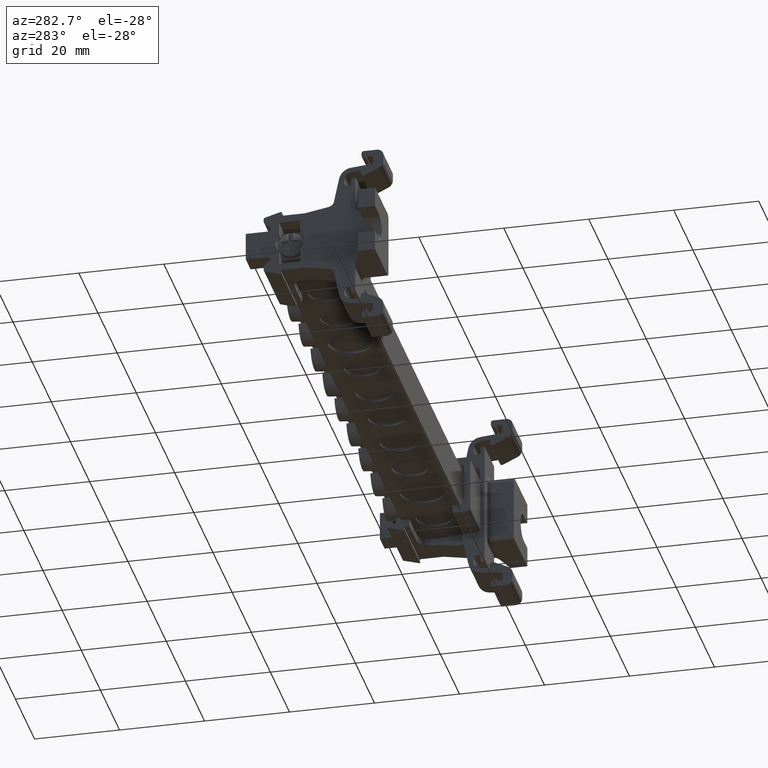
[diagram: clean part render]
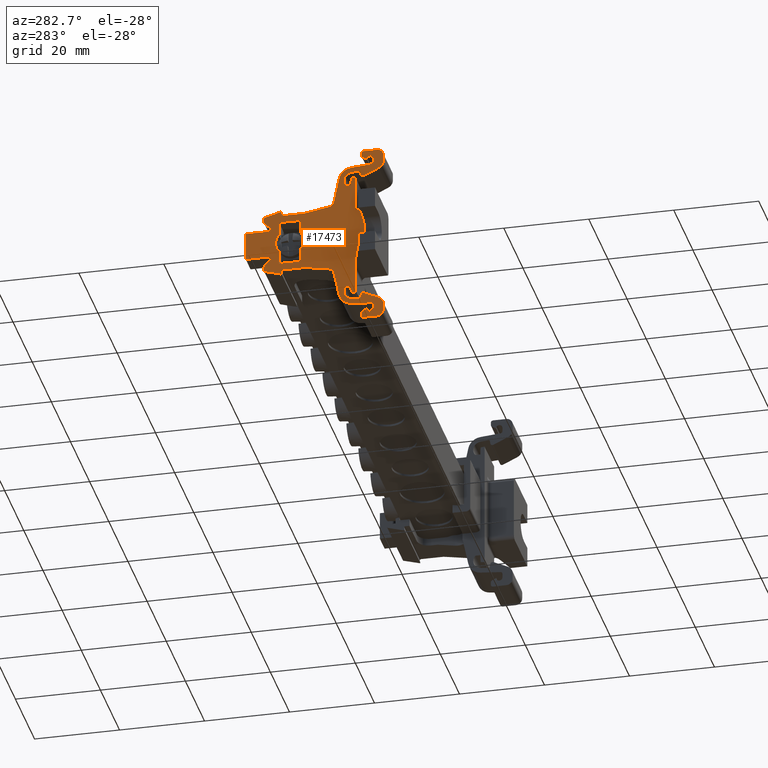
[diagram: same view with one face highlighted and labeled with its STEP entity id]
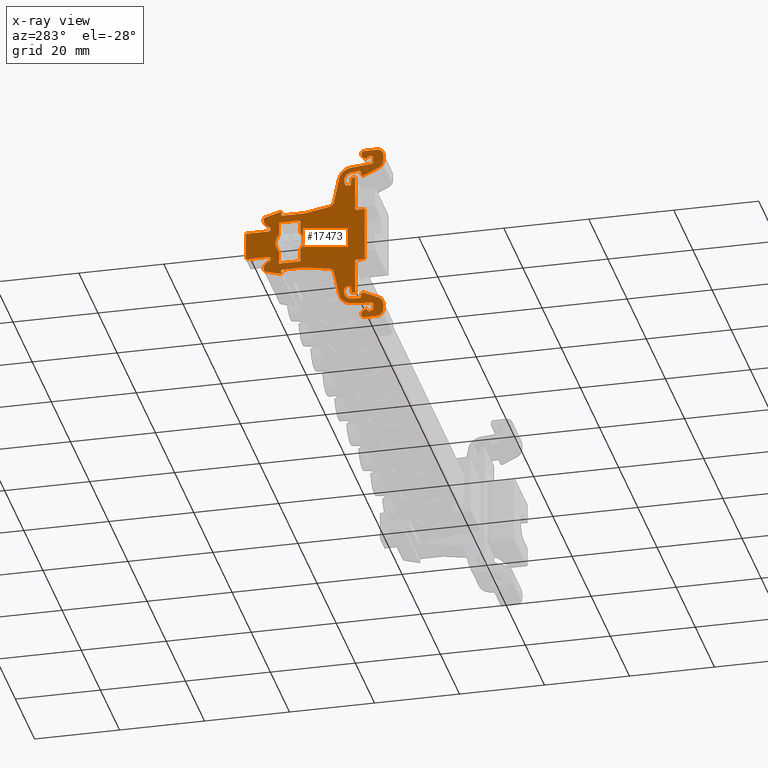
[diagram: x-ray of the same camera — body ghosted, the highlighted face saturated]
A machine part, auxiliary view. The second image highlights one B-rep face of the part: STEP entity #17473.
The next image is the same camera in x-ray: the body ghosted, the highlighted face saturated — about 0% of this face is hidden behind the body in this view.
In plain terms, the highlighted planar face has unit normal (1, -0, 0).
Its self-contained STEP definition (entity closure, byte-faithful):
#292 = DIRECTION ( 'NONE',  ( 0.0000000000000000000, 1.000000000000000000, 1.317013126038875900E-013 ) ) ;
#304 = CARTESIAN_POINT ( 'NONE',  ( -99.95269769582401400, 62.70389143311250300, 34.76864998369273300 ) ) ;
#491 = DIRECTION ( 'NONE',  ( 0.0000000000000000000, 1.000000000000000000, 0.0000000000000000000 ) ) ;
#498 = LINE ( 'NONE', #499, #10880 ) ;
#499 = CARTESIAN_POINT ( 'NONE',  ( -99.95269769582404300, 61.91882648293060500, 44.61224998368919600 ) ) ;
#502 = DIRECTION ( 'NONE',  ( -3.511194208363125300E-015, 2.772991955511191100E-029, 1.000000000000000000 ) ) ;
#503 = DIRECTION ( 'NONE',  ( 1.000000000000000000, -7.897574987183420400E-015, 4.241555170703035500E-015 ) ) ;
#511 = CARTESIAN_POINT ( 'NONE',  ( -99.95269769582409900, 57.21882648293350800, 43.10264998369069600 ) ) ;
#1083 = DIRECTION ( 'NONE',  ( -7.897574987183420400E-015, -1.000000000000000000, -0.0000000000000000000 ) ) ;
#1092 = LINE ( 'NONE', #1102, #10737 ) ;
#1098 = LINE ( 'NONE', #1101, #10718 ) ;
#1101 = CARTESIAN_POINT ( 'NONE',  ( -99.95269769582401400, 65.03482648293409300, 43.40264998369006800 ) ) ;
#1102 = CARTESIAN_POINT ( 'NONE',  ( -99.95269769582395700, 62.70389143311250300, 41.38664998368977900 ) ) ;
#1107 = DIRECTION ( 'NONE',  ( 0.0000000000000000000, -1.000000000000000000, 1.317013126038876400E-013 ) ) ;
#1136 = CARTESIAN_POINT ( 'NONE',  ( -99.95269769582397100, 69.74082521647829900, 44.61224998368919600 ) ) ;
#1159 = DIRECTION ( 'NONE',  ( 3.511194208363125300E-015, -2.772991955511191100E-029, -1.000000000000000000 ) ) ;
#1162 = LINE ( 'NONE', #1136, #10749 ) ;
#1219 = LINE ( 'NONE', #304, #10782 ) ;
#1671 = LINE ( 'NONE', #1730, #10755 ) ;
#1715 = DIRECTION ( 'NONE',  ( -1.953725741756758300E-043, -1.000000000000000000, 6.210162800210800600E-029 ) ) ;
#1730 = CARTESIAN_POINT ( 'NONE',  ( -99.95269769582401400, 53.91882648293220400, 32.75264998369301800 ) ) ;
#1770 = DIRECTION ( 'NONE',  ( -1.429276196835898100E-043, -1.809765908086215100E-029, -1.000000000000000000 ) ) ;
#1785 = LINE ( 'NONE', #1789, #10273 ) ;
#1789 = CARTESIAN_POINT ( 'NONE',  ( -99.95269769582401400, 61.91882648293066200, 32.75264998369255000 ) ) ;
#1814 = EDGE_CURVE ( 'NONE', #8207, #12896, #4591, .T. ) ;
#1824 = EDGE_CURVE ( 'NONE', #12898, #8166, #11128, .T. ) ;
#1861 = EDGE_CURVE ( 'NONE', #8165, #12920, #11104, .T. ) ;
#1863 = EDGE_CURVE ( 'NONE', #12822, #12858, #4669, .T. ) ;
#1873 = CARTESIAN_POINT ( 'NONE',  ( -99.95269769582409900, 46.04835549248059600, 45.11624998369194400 ) ) ;
#1875 = LINE ( 'NONE', #1897, #10190 ) ;
#1876 = DIRECTION ( 'NONE',  ( -1.000000000000000000, 7.897574987183420400E-015, -3.511194208363125300E-015 ) ) ;
#1888 = CARTESIAN_POINT ( 'NONE',  ( -99.95269769582401400, 61.56727615041499000, 46.12424998368948100 ) ) ;
#1897 = CARTESIAN_POINT ( 'NONE',  ( -99.95269769582409900, 44.92394467542320800, 20.44912216232953400 ) ) ;
#1911 = CARTESIAN_POINT ( 'NONE',  ( -99.95269769582407100, 50.47768931561488200, 28.56414688357877200 ) ) ;
#1926 = CARTESIAN_POINT ( 'NONE',  ( -99.95269769582409900, 41.98963461062949400, 16.47537229411298700 ) ) ;
#1935 = EDGE_CURVE ( 'NONE', #12886, #12874, #11088, .T. ) ;
#1950 = DIRECTION ( 'NONE',  ( 0.0000000000000000000, -1.000000000000000000, 1.313518572567622100E-013 ) ) ;
#1955 = DIRECTION ( 'NONE',  ( -9.251858538542620400E-015, -1.000000000000000000, 0.0000000000000000000 ) ) ;
#1969 = LINE ( 'NONE', #1926, #10206 ) ;
#1971 = DIRECTION ( 'NONE',  ( -0.0000000000000000000, 1.000000000000000000, -4.442812951237015500E-015 ) ) ;
#1973 = CARTESIAN_POINT ( 'NONE',  ( -99.95269769582431300, 40.52224083797251800, 57.53060022804005100 ) ) ;
#1978 = LINE ( 'NONE', #1888, #10249 ) ;
#1981 = LINE ( 'NONE', #1873, #10238 ) ;
#1984 = DIRECTION ( 'NONE',  ( 0.0000000000000000000, 0.9961947123350144400, 0.08715557994619578500 ) ) ;
#1987 = DIRECTION ( 'NONE',  ( 0.0000000000000000000, -0.9611011447771289400, 0.2761966500667452100 ) ) ;
#1991 = DIRECTION ( 'NONE',  ( -1.000000000000000000, 7.897574987183420400E-015, -3.511194208363125300E-015 ) ) ;
#1993 = DIRECTION ( 'NONE',  ( 0.0000000000000000000, 1.000000000000000000, 0.0000000000000000000 ) ) ;
#1996 = ORIENTED_EDGE ( 'NONE', *, *, #13749, .F. ) ;
#1998 = LINE ( 'NONE', #2020, #10418 ) ;
#2008 = CARTESIAN_POINT ( 'NONE',  ( -99.95269769582431300, 38.86598570617793100, 58.17992767326953900 ) ) ;
#2014 = CARTESIAN_POINT ( 'NONE',  ( -99.95269769582418500, 48.88003733662793600, 47.85295847066355900 ) ) ;
#2017 = CARTESIAN_POINT ( 'NONE',  ( -99.95269769582408500, 55.87540409741046700, 31.03904984326447500 ) ) ;
#2019 = EDGE_CURVE ( 'NONE', #12890, #8208, #4814, .T. ) ;
#2020 = CARTESIAN_POINT ( 'NONE',  ( -99.95269769582431300, 41.98963461062949400, 59.67992767326953900 ) ) ;
#2024 = LINE ( 'NONE', #2014, #10268 ) ;
#2026 = DIRECTION ( 'NONE',  ( -0.0000000000000000000, 0.9848077443312939200, 0.1736482268988329700 ) ) ;
#2030 = ORIENTED_EDGE ( 'NONE', *, *, #13919, .F. ) ;
#2036 = ORIENTED_EDGE ( 'NONE', *, *, #13417, .F. ) ;
#2046 = DIRECTION ( 'NONE',  ( 0.0000000000000000000, -0.2031293010246979800, 0.9791519223620088800 ) ) ;
#2061 = DIRECTION ( 'NONE',  ( 1.000000000000000000, -7.897574987183420400E-015, 3.511194208363125300E-015 ) ) ;
#2064 = DIRECTION ( 'NONE',  ( 9.251858538542962800E-015, 1.000000000000000000, 0.0000000000000000000 ) ) ;
#2071 = LINE ( 'NONE', #2089, #10425 ) ;
#2073 = CARTESIAN_POINT ( 'NONE',  ( -99.95269769582421300, 44.92394467542319300, 55.70617780505301700 ) ) ;
#2077 = DIRECTION ( 'NONE',  ( -0.0000000000000000000, -1.000000000000000000, -4.442812951236960300E-015 ) ) ;
#2079 = DIRECTION ( 'NONE',  ( 0.0000000000000000000, -0.9961947123350144400, 0.08715557994619578500 ) ) ;
#2087 = LINE ( 'NONE', #2017, #10422 ) ;
#2089 = CARTESIAN_POINT ( 'NONE',  ( -99.95269769582421300, 43.05277200151784500, 54.66530018249652300 ) ) ;
#2098 = ORIENTED_EDGE ( 'NONE', *, *, #13699, .F. ) ;
#2104 = LINE ( 'NONE', #2073, #10310 ) ;
#2109 = ORIENTED_EDGE ( 'NONE', *, *, #13604, .F. ) ;
#2129 = CARTESIAN_POINT ( 'NONE',  ( -99.95269769582414200, 39.36598576649556900, 19.44026919310775600 ) ) ;
#2141 = DIRECTION ( 'NONE',  ( 0.0000000000000000000, -0.9062916780557625000, -0.4226528058428927800 ) ) ;
#2143 = DIRECTION ( 'NONE',  ( -6.938893903907655200E-015, -1.000000000000000000, 1.734723475976913800E-015 ) ) ;
#2145 = CARTESIAN_POINT ( 'NONE',  ( -99.95269769582401400, 61.56727615041500500, 30.03104998369307000 ) ) ;
#2148 = CARTESIAN_POINT ( 'NONE',  ( -99.95269769582412800, 38.52068015481052800, 21.25285254921938700 ) ) ;
#2152 = CARTESIAN_POINT ( 'NONE',  ( -99.95269769582432700, 38.52068015481044900, 54.90244741816311300 ) ) ;
#2161 = LINE ( 'NONE', #2145, #10384 ) ;
#2165 = DIRECTION ( 'NONE',  ( 1.000000000000000000, -7.897574987183420400E-015, 3.511194211457205400E-015 ) ) ;
#2168 = DIRECTION ( 'NONE',  ( 0.0000000000000000000, 0.9961947123350202200, -0.08715557994613093400 ) ) ;
#2169 = ORIENTED_EDGE ( 'NONE', *, *, #13404, .F. ) ;
#2174 = LINE ( 'NONE', #2152, #10378 ) ;
#2193 = DIRECTION ( 'NONE',  ( 0.0000000000000000000, 0.9062916780557625000, -0.4226528058428927800 ) ) ;
#2195 = LINE ( 'NONE', #2148, #10326 ) ;
#2214 = DIRECTION ( 'NONE',  ( 0.0000000000000000000, 0.9611011447771289400, 0.2761966500667452100 ) ) ;
#2218 = DIRECTION ( 'NONE',  ( 1.000000000000000000, -7.897574987183420400E-015, 3.511194211457205400E-015 ) ) ;
#2219 = ORIENTED_EDGE ( 'NONE', *, *, #13419, .T. ) ;
#2222 = VERTEX_POINT ( 'NONE', #4949 ) ;
#2233 = DIRECTION ( 'NONE',  ( -0.0000000000000000000, 0.2031293010246979800, 0.9791519223620088800 ) ) ;
#2237 = DIRECTION ( 'NONE',  ( -8.673617587638689600E-015, -1.000000000000000000, -1.084202198454836200E-015 ) ) ;
#2241 = LINE ( 'NONE', #2245, #10361 ) ;
#2245 = CARTESIAN_POINT ( 'NONE',  ( -99.95269769582401400, 46.04835549248059600, 31.03904998369051400 ) ) ;
#2249 = CARTESIAN_POINT ( 'NONE',  ( -99.95269769582412800, 43.96882648293843200, 31.57865108636425000 ) ) ;
#2251 = DIRECTION ( 'NONE',  ( 0.0000000000000000000, 1.000000000000000000, 1.313518572567621600E-013 ) ) ;
#2267 = CARTESIAN_POINT ( 'NONE',  ( -99.95269769582424100, 44.64504681959606800, 52.51835480252170600 ) ) ;
#2271 = DIRECTION ( 'NONE',  ( 1.000000000000000000, -7.897574987183420400E-015, 3.511194205269045200E-015 ) ) ;
#2272 = VERTEX_POINT ( 'NONE', #4934 ) ;
#2275 = CARTESIAN_POINT ( 'NONE',  ( -99.95269769582409900, 40.52224083797251800, 18.62469973934248600 ) ) ;
#2279 = DIRECTION ( 'NONE',  ( 0.0000000000000000000, 1.000000000000000000, 0.0000000000000000000 ) ) ;
#2289 = LINE ( 'NONE', #2249, #10352 ) ;
#2291 = LINE ( 'NONE', #2325, #10420 ) ;
#2296 = VERTEX_POINT ( 'NONE', #4909 ) ;
#2300 = CARTESIAN_POINT ( 'NONE',  ( -99.95269769582408500, 38.86598570617793100, 17.97537229411298300 ) ) ;
#2302 = DIRECTION ( 'NONE',  ( -1.000000000000000000, 7.897574987183420400E-015, -3.511194208363125300E-015 ) ) ;
#2304 = DIRECTION ( 'NONE',  ( 6.459689804735800300E-016, -2.029524368493310700E-015, -1.000000000000000000 ) ) ;
#2307 = VERTEX_POINT ( 'NONE', #4959 ) ;
#2311 = CARTESIAN_POINT ( 'NONE',  ( -99.95269769582411400, 44.64504681959606800, 23.63694516486080500 ) ) ;
#2313 = DIRECTION ( 'NONE',  ( 9.251858538542962800E-015, 1.000000000000000000, 0.0000000000000000000 ) ) ;
#2315 = DIRECTION ( 'NONE',  ( -8.673617587638689600E-015, -1.000000000000000000, 0.0000000000000000000 ) ) ;
#2323 = DIRECTION ( 'NONE',  ( 1.000000000000000000, -7.897574987183420400E-015, 3.511194208363125300E-015 ) ) ;
#2325 = CARTESIAN_POINT ( 'NONE',  ( -99.95269769582407100, 48.88003733662793600, 28.30234149671938900 ) ) ;
#2356 = DIRECTION ( 'NONE',  ( 0.0000000000000000000, -0.9961947123350202200, -0.08715557994613093400 ) ) ;
#2358 = DIRECTION ( 'NONE',  ( 1.000000000000000000, -7.897574987183420400E-015, 3.511194205269045200E-015 ) ) ;
#2363 = CARTESIAN_POINT ( 'NONE',  ( -99.95269769582404300, 59.41882648293172100, 38.07764998369119500 ) ) ;
#2365 = CARTESIAN_POINT ( 'NONE',  ( -99.95269769582428400, 39.36598576649556900, 56.71503077427470900 ) ) ;
#2369 = DIRECTION ( 'NONE',  ( -8.387904386714116300E-015, -1.000000000000000000, 0.0000000000000000000 ) ) ;
#2385 = CARTESIAN_POINT ( 'NONE',  ( -99.95269769582409900, 43.05277200151785900, 21.48999978488593500 ) ) ;
#2400 = VERTEX_POINT ( 'NONE', #5024 ) ;
#2403 = LINE ( 'NONE', #2385, #10389 ) ;
#2418 = DIRECTION ( 'NONE',  ( -6.938893903907655200E-015, -1.000000000000000000, 0.0000000000000000000 ) ) ;
#2419 = VERTEX_POINT ( 'NONE', #5005 ) ;
#2432 = DIRECTION ( 'NONE',  ( -1.000000000000000000, 7.897574987183420400E-015, -3.511194208363125300E-015 ) ) ;
#2474 = LINE ( 'NONE', #2529, #10514 ) ;
#2529 = CARTESIAN_POINT ( 'NONE',  ( -99.95269769582409900, 56.91882648293359600, 36.24584998369491700 ) ) ;
#2558 = DIRECTION ( 'NONE',  ( -5.514850332172919700E-029, -6.982966722218802000E-015, 1.000000000000000000 ) ) ;
#2563 = DIRECTION ( 'NONE',  ( -1.000000000000000000, 7.897574987183420400E-015, -3.511194211457205400E-015 ) ) ;
#2566 = CARTESIAN_POINT ( 'NONE',  ( -99.95269769582409900, 44.64504681959606800, 23.63694516486080500 ) ) ;
#2573 = DIRECTION ( 'NONE',  ( 5.514850332172952200E-029, 6.982966722218800400E-015, 1.000000000000000000 ) ) ;
#2574 = DIRECTION ( 'NONE',  ( -6.938893903906572000E-015, -1.000000000000000000, 0.0000000000000000000 ) ) ;
#2580 = CARTESIAN_POINT ( 'NONE',  ( -99.95269769582401400, 56.91882648293359600, 39.90944998368764400 ) ) ;
#2583 = LINE ( 'NONE', #2580, #10475 ) ;
#2595 = DIRECTION ( 'NONE',  ( -1.000000000000000000, 7.897574987183420400E-015, -2.793138511506590000E-015 ) ) ;
#2598 = CARTESIAN_POINT ( 'NONE',  ( -99.95269769582401400, 64.41902670048102700, 34.26864998369294600 ) ) ;
#2602 = DIRECTION ( 'NONE',  ( 0.0000000000000000000, -1.000000000000000000, 0.0000000000000000000 ) ) ;
#2611 = CARTESIAN_POINT ( 'NONE',  ( -99.95269769582421300, 43.96882648293847500, 49.54146295254189900 ) ) ;
#2620 = DIRECTION ( 'NONE',  ( 2.265165414331192000E-043, 2.868178419334055400E-029, -1.000000000000000000 ) ) ;
#2642 = LINE ( 'NONE', #2611, #10515 ) ;
#2668 = CARTESIAN_POINT ( 'NONE',  ( -99.95269769582407100, 59.41882648293172100, 38.07764998369119500 ) ) ;
#2671 = DIRECTION ( 'NONE',  ( -0.0000000000000000000, -0.9848077443312939200, 0.1736482268988329700 ) ) ;
#2676 = CARTESIAN_POINT ( 'NONE',  ( -99.95269769582401400, 64.41902670048102700, 41.88664998368954400 ) ) ;
#2682 = DIRECTION ( 'NONE',  ( 0.0000000000000000000, -1.000000000000000000, 0.0000000000000000000 ) ) ;
#2683 = DIRECTION ( 'NONE',  ( -8.387904386714116300E-015, -1.000000000000000000, 0.0000000000000000000 ) ) ;
#2685 = DIRECTION ( 'NONE',  ( -1.000000000000000000, 7.897574987183420400E-015, -4.229249905219665300E-015 ) ) ;
#2686 = DIRECTION ( 'NONE',  ( -1.000000000000000000, 7.897574987183420400E-015, -3.511194208363125300E-015 ) ) ;
#2687 = CARTESIAN_POINT ( 'NONE',  ( -99.95269769582429800, 55.87540409741026800, 45.11625012411806100 ) ) ;
#2692 = LINE ( 'NONE', #2687, #10571 ) ;
#2701 = LINE ( 'NONE', #2703, #10578 ) ;
#2703 = CARTESIAN_POINT ( 'NONE',  ( -99.95269769582404300, 43.96882648293847500, 49.54146295254189900 ) ) ;
#2707 = DIRECTION ( 'NONE',  ( 2.265165414331192000E-043, 2.868178419334055400E-029, -1.000000000000000000 ) ) ;
#2718 = DIRECTION ( 'NONE',  ( -6.938893903906572000E-015, -1.000000000000000000, 0.0000000000000000000 ) ) ;
#2723 = CARTESIAN_POINT ( 'NONE',  ( -99.95269769582419900, 50.47768931561488200, 47.59115308380376100 ) ) ;
#2734 = CARTESIAN_POINT ( 'NONE',  ( -99.95269769582419900, 44.64504681959606800, 52.51835480252170600 ) ) ;
#2735 = DIRECTION ( 'NONE',  ( -1.000000000000000000, 7.897574987183420400E-015, -3.511194205269045200E-015 ) ) ;
#2739 = DIRECTION ( 'NONE',  ( -9.251858538542620400E-015, -1.000000000000000000, 0.0000000000000000000 ) ) ;
#2741 = DIRECTION ( 'NONE',  ( -1.000000000000000000, 7.897574987183420400E-015, -3.511194208363125300E-015 ) ) ;
#2797 = CARTESIAN_POINT ( 'NONE',  ( -99.95269769582408500, 43.96882648293843900, 44.57664888101815100 ) ) ;
#2807 = DIRECTION ( 'NONE',  ( -0.0000000000000000000, -0.0000000000000000000, -1.000000000000000000 ) ) ;
#2825 = LINE ( 'NONE', #2797, #10633 ) ;
#2934 = CARTESIAN_POINT ( 'NONE',  ( -99.95269769582401400, 62.41882648293066200, 40.42466532237141800 ) ) ;
#2935 = DIRECTION ( 'NONE',  ( 1.000000000000000000, -7.897574987183420400E-015, 3.511194208363125300E-015 ) ) ;
#2949 = DIRECTION ( 'NONE',  ( 0.0000000000000000000, 1.000000000000000000, 0.0000000000000000000 ) ) ;
#2982 = CARTESIAN_POINT ( 'NONE',  ( -99.95269769582401400, 63.91902670048102700, 34.07168043476323000 ) ) ;
#3005 = CARTESIAN_POINT ( 'NONE',  ( -99.95269769582421300, 44.97751323073788400, 51.17200985974282900 ) ) ;
#3016 = CARTESIAN_POINT ( 'NONE',  ( -99.95269769582401400, 64.24298665697159500, 42.55160447156620800 ) ) ;
#3019 = CARTESIAN_POINT ( 'NONE',  ( -99.95269769582409900, 44.87820380573431600, 23.15543380797925400 ) ) ;
#3027 = CARTESIAN_POINT ( 'NONE',  ( -99.95269769582421300, 44.87820380573425900, 52.99986615940321100 ) ) ;
#3049 = DIRECTION ( 'NONE',  ( 0.0000000000000000000, 1.000000000000000000, 0.0000000000000000000 ) ) ;
#3078 = LINE ( 'NONE', #3083, #11197 ) ;
#3081 = DIRECTION ( 'NONE',  ( 1.000000000000000000, -7.897574987183420400E-015, 3.511194208363125300E-015 ) ) ;
#3083 = CARTESIAN_POINT ( 'NONE',  ( -99.95269769582434100, 37.36598549717826500, 58.27021652569911900 ) ) ;
#3091 = CARTESIAN_POINT ( 'NONE',  ( -99.95269769582428400, 40.26324495096417200, 56.61584533913983800 ) ) ;
#3124 = CARTESIAN_POINT ( 'NONE',  ( -99.95269769582421300, 44.87820380573409600, 52.99986615940322600 ) ) ;
#3126 = LINE ( 'NONE', #3148, #11149 ) ;
#3132 = DIRECTION ( 'NONE',  ( 0.0000000000000000000, -0.9961947123350194400, 0.08715557994613965000 ) ) ;
#3136 = LINE ( 'NONE', #3124, #11183 ) ;
#3138 = DIRECTION ( 'NONE',  ( 0.0000000000000000000, 1.731736892445320000E-007, -0.9999999999999850100 ) ) ;
#3148 = CARTESIAN_POINT ( 'NONE',  ( -99.95269769582425600, 41.28123955800669600, 57.53060128518093600 ) ) ;
#3149 = DIRECTION ( 'NONE',  ( 0.0000000000000000000, 0.9961947123350194400, 0.08715557994613965000 ) ) ;
#3151 = DIRECTION ( 'NONE',  ( -1.250126030060185400E-014, -0.8660318092065678600, -0.4999889053193069000 ) ) ;
#3154 = DIRECTION ( 'NONE',  ( 0.0000000000000000000, -1.000000000000000000, 2.312964634633911200E-014 ) ) ;
#3155 = LINE ( 'NONE', #3185, #11155 ) ;
#3158 = CARTESIAN_POINT ( 'NONE',  ( -99.95269769582409900, 44.87820380573411000, 23.15543380797923600 ) ) ;
#3161 = DIRECTION ( 'NONE',  ( 1.000000000000000000, -7.897574987183420400E-015, 3.511194205269045200E-015 ) ) ;
#3163 = LINE ( 'NONE', #3182, #11191 ) ;
#3166 = LINE ( 'NONE', #3158, #11204 ) ;
#3168 = DIRECTION ( 'NONE',  ( 7.897574987183420400E-015, 1.000000000000000000, 0.0000000000000000000 ) ) ;
#3170 = CARTESIAN_POINT ( 'NONE',  ( -99.95269769582434100, 41.98963583581547700, 59.17392918536433700 ) ) ;
#3173 = CARTESIAN_POINT ( 'NONE',  ( -99.95269769582421300, 43.02662532753472400, 54.36644176879551100 ) ) ;
#3182 = CARTESIAN_POINT ( 'NONE',  ( -99.95269769582404300, 65.03482648293409300, 51.17200985974282900 ) ) ;
#3185 = CARTESIAN_POINT ( 'NONE',  ( -99.95269769582421300, 49.02563120575627000, 47.21495201310560900 ) ) ;
#3186 = DIRECTION ( 'NONE',  ( 0.0000000000000000000, -0.2508007137987740000, 0.9680387399056018500 ) ) ;
#3187 = DIRECTION ( 'NONE',  ( 0.0000000000000000000, 1.000000000000000000, 0.0000000000000000000 ) ) ;
#3204 = DIRECTION ( 'NONE',  ( 1.000000000000000000, -7.897574987183420400E-015, 3.511194205269045200E-015 ) ) ;
#3206 = DIRECTION ( 'NONE',  ( 0.0000000000000000000, -1.000000000000000000, 0.0000000000000000000 ) ) ;
#3211 = CARTESIAN_POINT ( 'NONE',  ( -99.95269769582421300, 39.76328212676738600, 44.61217171681441600 ) ) ;
#3214 = DIRECTION ( 'NONE',  ( 3.511218667417878100E-015, 3.097035688948970800E-006, -0.9999999999952042800 ) ) ;
#3223 = DIRECTION ( 'NONE',  ( 1.000000000000000000, -7.897574987183420400E-015, 3.511194208363125300E-015 ) ) ;
#3226 = LINE ( 'NONE', #3211, #11227 ) ;
#3227 = CARTESIAN_POINT ( 'NONE',  ( -99.95269769582427000, 42.11087856375201700, 53.77984257062170300 ) ) ;
#3244 = DIRECTION ( 'NONE',  ( 0.0000000000000000000, 1.000000000000000000, 0.0000000000000000000 ) ) ;
#3256 = DIRECTION ( 'NONE',  ( 1.000000000000000000, -7.897574987183431400E-015, 4.241555170703035500E-015 ) ) ;
#3277 = CARTESIAN_POINT ( 'NONE',  ( -99.95269769582409900, 61.14930040515577800, 45.41624998368995800 ) ) ;
#3306 = CARTESIAN_POINT ( 'NONE',  ( -99.95269769582409900, 56.41882648293361800, 40.42466532237224900 ) ) ;
#3307 = DIRECTION ( 'NONE',  ( 1.000000000000000000, -7.897574987183420400E-015, 3.511194208363125300E-015 ) ) ;
#3308 = DIRECTION ( 'NONE',  ( 0.0000000000000000000, -1.000000000000000000, 0.0000000000000000000 ) ) ;
#3375 = DIRECTION ( 'NONE',  ( 0.0000000000000000000, 1.000000000000000000, 0.0000000000000000000 ) ) ;
#3409 = DIRECTION ( 'NONE',  ( 1.000000000000000000, -7.897574987183420400E-015, 3.511194208363125300E-015 ) ) ;
#3418 = CARTESIAN_POINT ( 'NONE',  ( -99.95269769582401400, 62.41882648293066200, 35.73063464501106500 ) ) ;
#3422 = CARTESIAN_POINT ( 'NONE',  ( -99.95269769582405700, 56.41882648293361800, 35.73063464501024100 ) ) ;
#3429 = CARTESIAN_POINT ( 'NONE',  ( -99.95269769582401400, 63.91902670048102700, 33.70043375959469500 ) ) ;
#3440 = DIRECTION ( 'NONE',  ( 1.000000000000000000, -7.897574987183420400E-015, 3.511194208363125300E-015 ) ) ;
#3452 = DIRECTION ( 'NONE',  ( 0.0000000000000000000, -1.000000000000000000, 1.387778780781405900E-014 ) ) ;
#3453 = DIRECTION ( 'NONE',  ( 1.000000000000000000, -7.897574987183420400E-015, 2.780833246023220100E-015 ) ) ;
#3459 = LINE ( 'NONE', #3429, #11296 ) ;
#3460 = DIRECTION ( 'NONE',  ( 2.447812761631542700E-043, 3.099448584665515300E-029, 1.000000000000000000 ) ) ;
#3462 = DIRECTION ( 'NONE',  ( 0.0000000000000000000, 1.000000000000000000, 0.0000000000000000000 ) ) ;
#3463 = CARTESIAN_POINT ( 'NONE',  ( -99.95269769582401400, 57.21882648293350800, 33.05264998369175100 ) ) ;
#3655 = LINE ( 'NONE', #3681, #9990 ) ;
#3681 = CARTESIAN_POINT ( 'NONE',  ( -99.95269769582401400, 63.91902670048102700, 42.45486620778779500 ) ) ;
#3687 = DIRECTION ( 'NONE',  ( -2.471836676931409200E-043, -3.129867941669220200E-029, 1.000000000000000000 ) ) ;
#3881 = CARTESIAN_POINT ( 'NONE',  ( -99.95269769582418500, 43.96882648293844700, 44.57664888101815100 ) ) ;
#3882 = DIRECTION ( 'NONE',  ( 3.873243663584666500E-043, 1.000000000000000000, -5.515564554018680000E-029 ) ) ;
#3911 = LINE ( 'NONE', #3881, #10110 ) ;
#3913 = DIRECTION ( 'NONE',  ( -0.0000000000000000000, -1.000000000000000000, -0.0000000000000000000 ) ) ;
#3914 = CARTESIAN_POINT ( 'NONE',  ( -99.95269769582415600, 43.96882648293844700, 31.57865108636431700 ) ) ;
#3920 = LINE ( 'NONE', #3914, #10128 ) ;
#3930 = LINE ( 'NONE', #3969, #10118 ) ;
#3954 = DIRECTION ( 'NONE',  ( 2.163952870251257500E-043, 2.740021935547339900E-029, -1.000000000000000000 ) ) ;
#3969 = CARTESIAN_POINT ( 'NONE',  ( -99.95269769582418500, 41.74082521647810800, 30.07664998370404800 ) ) ;
#3975 = DIRECTION ( 'NONE',  ( 2.163952870251257500E-043, 2.740021935547339900E-029, -1.000000000000000000 ) ) ;
#3988 = CARTESIAN_POINT ( 'NONE',  ( -99.95269769582418500, 41.74082521647810800, 30.07664998370404800 ) ) ;
#4000 = LINE ( 'NONE', #3988, #10111 ) ;
#4018 = CARTESIAN_POINT ( 'NONE',  ( -99.95269769582409900, 57.21882648293353700, 43.40264998368977700 ) ) ;
#4020 = CARTESIAN_POINT ( 'NONE',  ( -99.95269769582401400, 65.53882648293397000, 31.97530602189870000 ) ) ;
#4044 = CARTESIAN_POINT ( 'NONE',  ( -99.95269769582401400, 64.41902670048094100, 34.76864998369296000 ) ) ;
#4064 = CARTESIAN_POINT ( 'NONE',  ( -99.95269769582409900, 44.96882679718346100, 24.89049478775880800 ) ) ;
#4086 = CARTESIAN_POINT ( 'NONE',  ( -99.95269769582401400, 64.24298665697158100, 33.60369549581626800 ) ) ;
#4098 = CARTESIAN_POINT ( 'NONE',  ( -99.95269769582401400, 65.37290098875294600, 32.52935884126677000 ) ) ;
#4120 = CARTESIAN_POINT ( 'NONE',  ( -99.95269769582421300, 44.96882679718346100, 51.26480517962370000 ) ) ;
#4150 = CARTESIAN_POINT ( 'NONE',  ( -99.95269769582401400, 65.53882648293397000, 44.17999394548380100 ) ) ;
#4152 = CARTESIAN_POINT ( 'NONE',  ( -99.95269769582409900, 44.97751323073787000, 24.98329010763962500 ) ) ;
#4157 = CARTESIAN_POINT ( 'NONE',  ( -99.95269769582412800, 42.60328566554737500, 22.46226319208279800 ) ) ;
#4158 = CARTESIAN_POINT ( 'NONE',  ( -99.95269769582401400, 61.32908888637999200, 30.03104998369308400 ) ) ;
#4163 = CARTESIAN_POINT ( 'NONE',  ( -99.95269769582401400, 65.37290098875291700, 43.62594112611562700 ) ) ;
#4164 = CARTESIAN_POINT ( 'NONE',  ( -99.95269769582401400, 61.44474273105948500, 30.68695553039241000 ) ) ;
#4165 = CARTESIAN_POINT ( 'NONE',  ( -99.95269769582409900, 44.96882667606966100, 24.19111794963733800 ) ) ;
#4168 = CARTESIAN_POINT ( 'NONE',  ( -99.95269769582421300, 42.73118106645738800, 54.41852524598872500 ) ) ;
#4170 = CARTESIAN_POINT ( 'NONE',  ( -99.95269769582434100, 42.49563694983704900, 58.52385763704976500 ) ) ;
#4175 = CARTESIAN_POINT ( 'NONE',  ( -99.95269769582407100, 61.32908888638003500, 46.12424998368946700 ) ) ;
#4178 = CARTESIAN_POINT ( 'NONE',  ( -99.95269769582429800, 42.49563432371903100, 59.17393071843631000 ) ) ;
#4181 = CARTESIAN_POINT ( 'NONE',  ( -99.95269769582434100, 42.24263147015487600, 58.08564474273960300 ) ) ;
#4189 = CARTESIAN_POINT ( 'NONE',  ( -99.95269769582425600, 42.60328566554737500, 53.69303677529968900 ) ) ;
#4196 = CARTESIAN_POINT ( 'NONE',  ( -99.95269769582421300, 44.96882669625527700, 51.96418178705380300 ) ) ;
#4199 = CARTESIAN_POINT ( 'NONE',  ( -99.95269769582409900, 42.24263147015486200, 18.06965522464284400 ) ) ;
#4202 = CARTESIAN_POINT ( 'NONE',  ( -99.95269769582401400, 65.53882648293405600, 31.54304998369324100 ) ) ;
#4203 = CARTESIAN_POINT ( 'NONE',  ( -99.95269769582409900, 42.73118106645740300, 21.73677472139374300 ) ) ;
#4204 = CARTESIAN_POINT ( 'NONE',  ( -99.95269769582409900, 42.49563432372109200, 16.98136975997017100 ) ) ;
#4207 = CARTESIAN_POINT ( 'NONE',  ( -99.95269769582409900, 42.49563694983683600, 17.63144227764683700 ) ) ;
#4591 = LINE ( 'NONE', #4632, #11127 ) ;
#4602 = CARTESIAN_POINT ( 'NONE',  ( -99.95269769582401400, 64.41902670048095600, 34.07168043476322300 ) ) ;
#4604 = DIRECTION ( 'NONE',  ( 0.0000000000000000000, -1.000000000000000000, 0.0000000000000000000 ) ) ;
#4606 = DIRECTION ( 'NONE',  ( 1.000000000000000000, -7.897574987183420400E-015, 2.780833246023220100E-015 ) ) ;
#4613 = DIRECTION ( 'NONE',  ( 0.0000000000000000000, -0.08716743514127643600, 0.9961936750707121000 ) ) ;
#4632 = CARTESIAN_POINT ( 'NONE',  ( -99.95269769582421300, 44.96882667606965400, 51.96418201774532300 ) ) ;
#4642 = DIRECTION ( 'NONE',  ( 1.000000000000000000, -7.897574987183420400E-015, 3.511194205269045200E-015 ) ) ;
#4647 = DIRECTION ( 'NONE',  ( 0.0000000000000000000, -1.000000000000000000, 0.0000000000000000000 ) ) ;
#4658 = CARTESIAN_POINT ( 'NONE',  ( -99.95269769582421300, 45.46882679718351700, 51.26480522291720400 ) ) ;
#4669 = LINE ( 'NONE', #4674, #11136 ) ;
#4674 = CARTESIAN_POINT ( 'NONE',  ( -99.95269769582424100, 42.60328566554738200, 53.69303677529976000 ) ) ;
#4681 = DIRECTION ( 'NONE',  ( 0.0000000000000000000, 0.1736115906440594800, 0.9848142035907279100 ) ) ;
#4752 = DIRECTION ( 'NONE',  ( 0.0000000000000000000, -1.000000000000000000, 0.0000000000000000000 ) ) ;
#4756 = DIRECTION ( 'NONE',  ( 1.000000000000000000, -7.897574987183420400E-015, 4.241555170703035500E-015 ) ) ;
#4773 = CARTESIAN_POINT ( 'NONE',  ( -99.95269769582401400, 64.41902670048095600, 42.08361953261921700 ) ) ;
#4801 = CARTESIAN_POINT ( 'NONE',  ( -99.95269769582409900, 44.96882667606966800, 24.19111794963737700 ) ) ;
#4814 = LINE ( 'NONE', #4801, #11165 ) ;
#4823 = DIRECTION ( 'NONE',  ( 0.0000000000000000000, 0.08716743514127643600, 0.9961936750707121000 ) ) ;
#4909 = CARTESIAN_POINT ( 'NONE',  ( -99.95269769582401400, 61.44930040515578200, 30.73904998369250000 ) ) ;
#4934 = CARTESIAN_POINT ( 'NONE',  ( -99.95269769582409900, 61.44930040515578200, 45.41624998368999400 ) ) ;
#4949 = CARTESIAN_POINT ( 'NONE',  ( -99.95269769582409900, 56.10982648293268900, 38.07764998369120200 ) ) ;
#4959 = CARTESIAN_POINT ( 'NONE',  ( -99.95269769582409900, 61.44474273105947000, 45.46834443699005800 ) ) ;
#5005 = CARTESIAN_POINT ( 'NONE',  ( -99.95269769582401400, 61.14930040515575600, 31.03904998369249700 ) ) ;
#5024 = CARTESIAN_POINT ( 'NONE',  ( -99.95269769582409900, 56.81263063100383400, 40.11657719705304000 ) ) ;
#5033 = CARTESIAN_POINT ( 'NONE',  ( -99.95269769582401400, 61.91882648293066200, 35.73063464501105800 ) ) ;
#5050 = CARTESIAN_POINT ( 'NONE',  ( -99.95269769582401400, 63.91902670048102700, 34.26864998369294600 ) ) ;
#5054 = CARTESIAN_POINT ( 'NONE',  ( -99.95269769582401400, 62.02502233486030300, 36.03872277033015300 ) ) ;
#5068 = CARTESIAN_POINT ( 'NONE',  ( -99.95269769582401400, 63.91902670048102700, 41.88664998368954400 ) ) ;
#5073 = CARTESIAN_POINT ( 'NONE',  ( -99.95269769582407100, 56.81263063100381300, 36.03872277032943600 ) ) ;
#5079 = CARTESIAN_POINT ( 'NONE',  ( -99.95269769582401400, 57.21882648293354400, 32.75264998369301800 ) ) ;
#5109 = CARTESIAN_POINT ( 'NONE',  ( -99.95269769582419900, 50.21721697526619700, 46.11394146730558700 ) ) ;
#5110 = CARTESIAN_POINT ( 'NONE',  ( -99.95269769582431300, 38.86598570617793100, 59.67992767326953200 ) ) ;
#5111 = CARTESIAN_POINT ( 'NONE',  ( -99.95269769582415600, 38.52068015481004400, 21.25285254921921300 ) ) ;
#5124 = CARTESIAN_POINT ( 'NONE',  ( -99.95269769582421300, 44.81935797948829500, 54.51074422719173600 ) ) ;
#5137 = CARTESIAN_POINT ( 'NONE',  ( -99.95269769582409900, 44.81935797948826700, 21.64455574019092100 ) ) ;
#5145 = CARTESIAN_POINT ( 'NONE',  ( -99.95269769582429800, 38.52068015481002300, 54.90244741816332000 ) ) ;
#5162 = CARTESIAN_POINT ( 'NONE',  ( -99.95269769582402800, 55.87540449561307600, 31.03904998369180000 ) ) ;
#5163 = CARTESIAN_POINT ( 'NONE',  ( -99.95269769582412800, 43.96882648293842500, 44.57664888101815100 ) ) ;
#5167 = CARTESIAN_POINT ( 'NONE',  ( -99.95269769582407100, 50.21721697526599100, 30.04135850007813600 ) ) ;
#5168 = CARTESIAN_POINT ( 'NONE',  ( -99.95269769582424100, 55.87540469471331800, 45.11625001879738800 ) ) ;
#5171 = CARTESIAN_POINT ( 'NONE',  ( -99.95269769582412800, 43.96882648293842500, 31.57865108636429600 ) ) ;
#5173 = CARTESIAN_POINT ( 'NONE',  ( -99.95269769582407100, 47.79345559758425600, 23.06465006952981200 ) ) ;
#5174 = CARTESIAN_POINT ( 'NONE',  ( -99.95269769582421300, 47.79345559758380100, 53.09064989785536400 ) ) ;
#5175 = CARTESIAN_POINT ( 'NONE',  ( -99.95269769582401400, 62.02502233486022500, 40.11657719705226600 ) ) ;
#5178 = CARTESIAN_POINT ( 'NONE',  ( -99.95269769582418500, 41.74082521647810800, 44.57664888101815100 ) ) ;
#5181 = CARTESIAN_POINT ( 'NONE',  ( -99.95269769582401400, 61.91882648293063300, 40.42466532237148200 ) ) ;
#5185 = CARTESIAN_POINT ( 'NONE',  ( -99.95269769582409900, 38.86598570617792300, 16.47537229411300100 ) ) ;
#5197 = CARTESIAN_POINT ( 'NONE',  ( -99.95269769582424100, 44.92394467041349800, 55.70617780549130800 ) ) ;
#5217 = CARTESIAN_POINT ( 'NONE',  ( -99.95269769582415600, 41.74082521647812900, 31.57865108636431700 ) ) ;
#5222 = CARTESIAN_POINT ( 'NONE',  ( -99.95269769582409900, 44.92394467041354000, 20.44912216189121400 ) ) ;
#5241 = CARTESIAN_POINT ( 'NONE',  ( -99.95269769582409900, 56.91882648293352500, 43.10264998369069600 ) ) ;
#5255 = CARTESIAN_POINT ( 'NONE',  ( -99.95269769582401400, 61.91882648293064800, 32.75264998369301800 ) ) ;
#5258 = CARTESIAN_POINT ( 'NONE',  ( -99.95269769582395700, 69.74082521647828500, 41.38664998368884800 ) ) ;
#5268 = CARTESIAN_POINT ( 'NONE',  ( -99.95269769582395700, 69.74082521647829900, 34.76864998369376300 ) ) ;
#5280 = CARTESIAN_POINT ( 'NONE',  ( -99.95269769582404300, 61.91882648293060500, 43.40264998368977700 ) ) ;
#5302 = CARTESIAN_POINT ( 'NONE',  ( -99.95269769582398600, 64.41902670048094100, 41.38664998368955100 ) ) ;
#5307 = DIRECTION ( 'NONE',  ( -6.938893903907222100E-015, -1.000000000000000000, 3.469446951953611000E-015 ) ) ;
#5331 = DIRECTION ( 'NONE',  ( 1.000000000000000000, -7.897574987183420400E-015, 4.241555170703035500E-015 ) ) ;
#5332 = CARTESIAN_POINT ( 'NONE',  ( -99.95269769582402800, 63.53882648293406300, 44.42354422735416400 ) ) ;
#5334 = DIRECTION ( 'NONE',  ( 8.461638321012420900E-031, 1.000000000000000000, -2.409903246268207600E-016 ) ) ;
#5348 = LINE ( 'NONE', #5350, #9728 ) ;
#5350 = CARTESIAN_POINT ( 'NONE',  ( -99.95269769582409900, 51.70000861726774100, 24.98329010763962500 ) ) ;
#5451 = DIRECTION ( 'NONE',  ( 0.0000000000000000000, 1.000000000000000000, 0.0000000000000000000 ) ) ;
#5469 = CARTESIAN_POINT ( 'NONE',  ( -99.95269769582401400, 61.14930040515577800, 30.73904998369247800 ) ) ;
#5471 = DIRECTION ( 'NONE',  ( 1.000000000000000000, -7.897574987183431400E-015, 2.780833246023220100E-015 ) ) ;
#5664 = DIRECTION ( 'NONE',  ( 0.0000000000000000000, -1.731740200024760200E-007, 0.9999999999999850100 ) ) ;
#5673 = LINE ( 'NONE', #5684, #9891 ) ;
#5684 = CARTESIAN_POINT ( 'NONE',  ( -99.95269769582421300, 44.96882679718357400, 51.26480513633030300 ) ) ;
#5732 = DIRECTION ( 'NONE',  ( 0.0000000000000000000, 1.731740200024760200E-007, 0.9999999999999850100 ) ) ;
#5744 = LINE ( 'NONE', #5758, #9879 ) ;
#5750 = CARTESIAN_POINT ( 'NONE',  ( -99.95269769582409900, 61.14930040515577800, 45.41624998368995800 ) ) ;
#5758 = CARTESIAN_POINT ( 'NONE',  ( -99.95269769582409900, 44.96882679718357400, 24.89049483105235100 ) ) ;
#5764 = DIRECTION ( 'NONE',  ( 0.0000000000000000000, 1.000000000000000000, 0.0000000000000000000 ) ) ;
#5765 = DIRECTION ( 'NONE',  ( 1.000000000000000000, -7.897574987183431400E-015, 4.241555170703035500E-015 ) ) ;
#5887 = CARTESIAN_POINT ( 'NONE',  ( -99.95269769582401400, 65.53882648293409800, 45.21019448720579700 ) ) ;
#5904 = LINE ( 'NONE', #5887, #9952 ) ;
#5914 = DIRECTION ( 'NONE',  ( 0.0000000000000000000, 1.317949113559219900E-013, 1.000000000000000000 ) ) ;
#6030 = DIRECTION ( 'NONE',  ( -6.938893903907222100E-015, -1.000000000000000000, -1.387778780781444400E-014 ) ) ;
#6031 = DIRECTION ( 'NONE',  ( 1.000000000000000000, -7.897574987183420400E-015, 2.780833246023220100E-015 ) ) ;
#6045 = CARTESIAN_POINT ( 'NONE',  ( -99.95269769582402800, 63.53882648293406300, 31.73175574002833000 ) ) ;
#6076 = CARTESIAN_POINT ( 'NONE',  ( -99.95269769582402800, 64.53082648293404600, 31.97530602189860400 ) ) ;
#6079 = CARTESIAN_POINT ( 'NONE',  ( -99.95269769582404300, 61.56727615041499700, 46.12424998368945900 ) ) ;
#6085 = DIRECTION ( 'NONE',  ( 1.000000000000000000, -7.897574987183420400E-015, 2.780833246023220100E-015 ) ) ;
#6086 = LINE ( 'NONE', #6079, #9696 ) ;
#6087 = DIRECTION ( 'NONE',  ( 0.0000000000000000000, -1.000000000000000000, -6.982966722218758600E-015 ) ) ;
#6101 = DIRECTION ( 'NONE',  ( 1.376764663473663000E-014, 1.000000000000000000, 0.0000000000000000000 ) ) ;
#6152 = CARTESIAN_POINT ( 'NONE',  ( -99.95269769582401400, 61.56727615041499700, 30.03104998369308400 ) ) ;
#6163 = DIRECTION ( 'NONE',  ( 0.0000000000000000000, 1.000000000000000000, 0.0000000000000000000 ) ) ;
#6177 = DIRECTION ( 'NONE',  ( 1.000000000000000000, -7.897574987183420400E-015, 3.511194208363125300E-015 ) ) ;
#6179 = CARTESIAN_POINT ( 'NONE',  ( -99.95269769582409900, 40.26324495096417200, 19.53945462824263800 ) ) ;
#6181 = DIRECTION ( 'NONE',  ( 0.0000000000000000000, 1.000000000000000000, -6.982966722218820100E-015 ) ) ;
#6184 = LINE ( 'NONE', #6152, #9659 ) ;
#6199 = CARTESIAN_POINT ( 'NONE',  ( -99.95269769582409900, 41.98963583581547700, 16.98137078201814300 ) ) ;
#6201 = DIRECTION ( 'NONE',  ( 1.000000000000000000, -7.897574987183420400E-015, 4.241555170703035500E-015 ) ) ;
#6203 = LINE ( 'NONE', #6213, #9764 ) ;
#6213 = CARTESIAN_POINT ( 'NONE',  ( -99.95269769582421300, 37.36598549717826500, 17.88508344168360200 ) ) ;
#6216 = DIRECTION ( 'NONE',  ( 0.0000000000000000000, -1.731736892445320000E-007, -0.9999999999999850100 ) ) ;
#6217 = CARTESIAN_POINT ( 'NONE',  ( -99.95269769582401400, 65.03482648293409300, 44.61224998368919600 ) ) ;
#6237 = DIRECTION ( 'NONE',  ( 0.0000000000000000000, -1.000000000000000000, 1.376764663473644300E-014 ) ) ;
#6245 = DIRECTION ( 'NONE',  ( 0.0000000000000000000, 1.000000000000000000, 0.0000000000000000000 ) ) ;
#6249 = DIRECTION ( 'NONE',  ( 3.511169749274695100E-015, -3.097035688948970800E-006, -0.9999999999952042800 ) ) ;
#6253 = CARTESIAN_POINT ( 'NONE',  ( -99.95269769582421300, 39.76332260254621100, 44.61232825043863000 ) ) ;
#6267 = LINE ( 'NONE', #6253, #9759 ) ;
#6278 = DIRECTION ( 'NONE',  ( 1.000000000000000000, -7.897574987183420400E-015, 3.511194208363125300E-015 ) ) ;
#6297 = CARTESIAN_POINT ( 'NONE',  ( -99.95269769582401400, 65.03482648293409300, 31.54304998369324800 ) ) ;
#6308 = DIRECTION ( 'NONE',  ( 1.000000000000000000, -7.897574987183420400E-015, 2.780833246023220100E-015 ) ) ;
#6311 = LINE ( 'NONE', #6314, #9744 ) ;
#6314 = CARTESIAN_POINT ( 'NONE',  ( -99.95269769582407100, 49.02563120575628400, 28.94034795427687700 ) ) ;
#6315 = DIRECTION ( 'NONE',  ( 0.0000000000000000000, 0.2508007137987740000, 0.9680387399056018500 ) ) ;
#6335 = DIRECTION ( 'NONE',  ( 0.0000000000000000000, -1.000000000000000000, -1.376764663473644300E-014 ) ) ;
#6411 = VERTEX_POINT ( 'NONE', #5079 ) ;
#6414 = VERTEX_POINT ( 'NONE', #5068 ) ;
#6428 = VERTEX_POINT ( 'NONE', #5033 ) ;
#6432 = VERTEX_POINT ( 'NONE', #5073 ) ;
#6434 = VERTEX_POINT ( 'NONE', #5050 ) ;
#6437 = VERTEX_POINT ( 'NONE', #5054 ) ;
#6464 = VERTEX_POINT ( 'NONE', #5109 ) ;
#6467 = VERTEX_POINT ( 'NONE', #5145 ) ;
#6474 = VERTEX_POINT ( 'NONE', #5137 ) ;
#6494 = VERTEX_POINT ( 'NONE', #5110 ) ;
#6495 = VERTEX_POINT ( 'NONE', #5111 ) ;
#6496 = VERTEX_POINT ( 'NONE', #5124 ) ;
#6509 = VERTEX_POINT ( 'NONE', #5167 ) ;
#6516 = VERTEX_POINT ( 'NONE', #5217 ) ;
#6526 = VERTEX_POINT ( 'NONE', #5168 ) ;
#6534 = VERTEX_POINT ( 'NONE', #5197 ) ;
#6537 = VERTEX_POINT ( 'NONE', #5173 ) ;
#6546 = VERTEX_POINT ( 'NONE', #5171 ) ;
#6549 = VERTEX_POINT ( 'NONE', #5178 ) ;
#6550 = VERTEX_POINT ( 'NONE', #5185 ) ;
#6551 = VERTEX_POINT ( 'NONE', #5222 ) ;
#6552 = VERTEX_POINT ( 'NONE', #5174 ) ;
#6556 = VERTEX_POINT ( 'NONE', #5162 ) ;
#6558 = VERTEX_POINT ( 'NONE', #5175 ) ;
#6560 = VERTEX_POINT ( 'NONE', #5163 ) ;
#6564 = VERTEX_POINT ( 'NONE', #5181 ) ;
#6590 = VERTEX_POINT ( 'NONE', #5255 ) ;
#6601 = VERTEX_POINT ( 'NONE', #5280 ) ;
#6604 = VERTEX_POINT ( 'NONE', #5241 ) ;
#6613 = VERTEX_POINT ( 'NONE', #5258 ) ;
#6623 = VERTEX_POINT ( 'NONE', #5268 ) ;
#6635 = VERTEX_POINT ( 'NONE', #5302 ) ;
#6648 = VERTEX_POINT ( 'NONE', #4044 ) ;
#6670 = VERTEX_POINT ( 'NONE', #4018 ) ;
#7491 = CARTESIAN_POINT ( 'NONE',  ( -99.95269769582401400, 63.91902670048102700, 42.08361953261922400 ) ) ;
#7556 = EDGE_LOOP ( 'NONE', ( #15746, #15829, #15810, #15857, #15807, #15809, #15812, #15814, #2036, #1996, #2219, #2030, #2109, #2169, #2098 ) ) ;
#7598 = EDGE_LOOP ( 'NONE', ( #15722, #15690, #15718, #15689, #15723, #15699, #15760, #15729, #15678, #15684, #15706, #15711, #15695, #15732, #15720, #15712, #15696, #15704, #15710, #15705, #15714, #15709, #15728, #15731, #15682, #15715, #15734, #15681, #15691, #15693, #15702, #15700, #15687, #15673, #15675, #15717, #15683, #15708, #15676, #15775, #15817, #15839, #15821, #15852, #15750, #15759, #15824, #15863, #15833, #15819, #15771, #15793, #15738, #15773, #15752, #15785, #15740, #15786, #15779, #15763, #15843, #15783, #15782, #15776, #15756, #15747, #15769, #15739, #15753, #15795, #15778, #15743, #15781, #15854, #15755, #15765, #15744, #15834, #15806, #15766, #15796, #15742, #15835, #15758, #15799, #15836, #15754, #15741, #15767, #15794, #15761, #15749, #15797 ) ) ;
#8112 = VERTEX_POINT ( 'NONE', #4020 ) ;
#8135 = VERTEX_POINT ( 'NONE', #4064 ) ;
#8165 = VERTEX_POINT ( 'NONE', #4120 ) ;
#8166 = VERTEX_POINT ( 'NONE', #4086 ) ;
#8171 = VERTEX_POINT ( 'NONE', #4098 ) ;
#8207 = VERTEX_POINT ( 'NONE', #4196 ) ;
#8208 = VERTEX_POINT ( 'NONE', #4165 ) ;
#9486 = CIRCLE ( 'NONE', #9515, 0.5059989537840523500 ) ;
#9488 = VECTOR ( 'NONE', #20193, 1000.000000000000100 ) ;
#9494 = CIRCLE ( 'NONE', #9503, 0.5000000000001600900 ) ;
#9497 = VECTOR ( 'NONE', #20046, 1000.000000000000000 ) ;
#9503 = AXIS2_PLACEMENT_3D ( 'NONE', #20069, #20070, #20063 ) ;
#9507 = VECTOR ( 'NONE', #20050, 1000.000000000000100 ) ;
#9513 = CIRCLE ( 'NONE', #9529, 0.5059989537840523500 ) ;
#9515 = AXIS2_PLACEMENT_3D ( 'NONE', #20028, #20030, #20022 ) ;
#9529 = AXIS2_PLACEMENT_3D ( 'NONE', #20079, #20060, #20091 ) ;
#9531 = VECTOR ( 'NONE', #20037, 1000.000000000000100 ) ;
#9551 = VECTOR ( 'NONE', #20150, 1000.000000000000100 ) ;
#9659 = VECTOR ( 'NONE', #6181, 1000.000000000000000 ) ;
#9663 = CIRCLE ( 'NONE', #9704, 0.5000000000000004400 ) ;
#9669 = AXIS2_PLACEMENT_3D ( 'NONE', #6076, #6085, #6101 ) ;
#9672 = CIRCLE ( 'NONE', #9669, 1.007999999999995100 ) ;
#9686 = VECTOR ( 'NONE', #19967, 1000.000000000000000 ) ;
#9689 = CIRCLE ( 'NONE', #9737, 0.5040000000000044400 ) ;
#9696 = VECTOR ( 'NONE', #6087, 1000.000000000000000 ) ;
#9704 = AXIS2_PLACEMENT_3D ( 'NONE', #6179, #6177, #6163 ) ;
#9716 = CIRCLE ( 'NONE', #9742, 0.5040000000000044400 ) ;
#9721 = AXIS2_PLACEMENT_3D ( 'NONE', #6199, #6278, #6245 ) ;
#9728 = VECTOR ( 'NONE', #5334, 1000.000000000000000 ) ;
#9737 = AXIS2_PLACEMENT_3D ( 'NONE', #6217, #6201, #6237 ) ;
#9742 = AXIS2_PLACEMENT_3D ( 'NONE', #6297, #6308, #6335 ) ;
#9744 = VECTOR ( 'NONE', #6315, 1000.000000000000000 ) ;
#9745 = CIRCLE ( 'NONE', #9757, 2.000000000000001800 ) ;
#9749 = CIRCLE ( 'NONE', #9721, 0.5059984879067919200 ) ;
#9757 = AXIS2_PLACEMENT_3D ( 'NONE', #5332, #5331, #5307 ) ;
#9759 = VECTOR ( 'NONE', #6249, 999.9999999999998900 ) ;
#9764 = VECTOR ( 'NONE', #6216, 1000.000000000000000 ) ;
#9779 = AXIS2_PLACEMENT_3D ( 'NONE', #20949, #20960, #20954 ) ;
#9789 = AXIS2_PLACEMENT_3D ( 'NONE', #19923, #19951, #19962 ) ;
#9814 = CIRCLE ( 'NONE', #9779, 0.5000000000000004400 ) ;
#9816 = AXIS2_PLACEMENT_3D ( 'NONE', #20955, #20970, #20943 ) ;
#9818 = CIRCLE ( 'NONE', #9816, 0.3000000000000016500 ) ;
#9820 = VECTOR ( 'NONE', #20956, 1000.000000000000100 ) ;
#9825 = AXIS2_PLACEMENT_3D ( 'NONE', #19960, #19958, #19947 ) ;
#9826 = CIRCLE ( 'NONE', #9825, 0.3000000000002375800 ) ;
#9829 = CIRCLE ( 'NONE', #9789, 1.007999999999995100 ) ;
#9864 = CIRCLE ( 'NONE', #9865, 0.3000000000000016500 ) ;
#9865 = AXIS2_PLACEMENT_3D ( 'NONE', #5750, #5765, #5764 ) ;
#9879 = VECTOR ( 'NONE', #5732, 1000.000000000000000 ) ;
#9891 = VECTOR ( 'NONE', #5664, 1000.000000000000000 ) ;
#9908 = CIRCLE ( 'NONE', #9938, 2.000000000000001800 ) ;
#9938 = AXIS2_PLACEMENT_3D ( 'NONE', #6045, #6031, #6030 ) ;
#9952 = VECTOR ( 'NONE', #5914, 1000.000000000000000 ) ;
#9990 = VECTOR ( 'NONE', #3687, 1000.000000000000000 ) ;
#10110 = VECTOR ( 'NONE', #3913, 1000.000000000000000 ) ;
#10111 = VECTOR ( 'NONE', #3975, 1000.000000000000000 ) ;
#10118 = VECTOR ( 'NONE', #3954, 1000.000000000000000 ) ;
#10128 = VECTOR ( 'NONE', #3882, 1000.000000000000000 ) ;
#10190 = VECTOR ( 'NONE', #1984, 1000.000000000000100 ) ;
#10206 = VECTOR ( 'NONE', #1971, 1000.000000000000000 ) ;
#10236 = AXIS2_PLACEMENT_3D ( 'NONE', #1911, #1876, #1955 ) ;
#10238 = VECTOR ( 'NONE', #1950, 1000.000000000000000 ) ;
#10249 = VECTOR ( 'NONE', #1987, 1000.000000000000100 ) ;
#10258 = CIRCLE ( 'NONE', #10294, 0.7589987200356460600 ) ;
#10268 = VECTOR ( 'NONE', #2046, 1000.000000000000100 ) ;
#10273 = VECTOR ( 'NONE', #1770, 1000.000000000000000 ) ;
#10294 = AXIS2_PLACEMENT_3D ( 'NONE', #1973, #1991, #1993 ) ;
#10303 = CIRCLE ( 'NONE', #10236, 1.500000000000056800 ) ;
#10310 = VECTOR ( 'NONE', #2079, 1000.000000000000100 ) ;
#10313 = CIRCLE ( 'NONE', #10319, 1.999999999999877000 ) ;
#10315 = AXIS2_PLACEMENT_3D ( 'NONE', #2311, #2218, #2237 ) ;
#10319 = AXIS2_PLACEMENT_3D ( 'NONE', #2365, #2358, #2418 ) ;
#10326 = VECTOR ( 'NONE', #2141, 1000.000000000000100 ) ;
#10330 = CIRCLE ( 'NONE', #10380, 1.999999999999877000 ) ;
#10332 = AXIS2_PLACEMENT_3D ( 'NONE', #2008, #2061, #2064 ) ;
#10337 = CIRCLE ( 'NONE', #10429, 1.500000000000001300 ) ;
#10345 = CIRCLE ( 'NONE', #10444, 3.199999923352063300 ) ;
#10352 = VECTOR ( 'NONE', #2304, 1000.000000000000000 ) ;
#10356 = CIRCLE ( 'NONE', #10315, 3.199999923352063300 ) ;
#10361 = VECTOR ( 'NONE', #2251, 1000.000000000000000 ) ;
#10367 = CIRCLE ( 'NONE', #10440, 0.7589987200356460600 ) ;
#10378 = VECTOR ( 'NONE', #2193, 1000.000000000000100 ) ;
#10380 = AXIS2_PLACEMENT_3D ( 'NONE', #2129, #2165, #2143 ) ;
#10384 = VECTOR ( 'NONE', #2214, 1000.000000000000100 ) ;
#10389 = VECTOR ( 'NONE', #2356, 1000.000000000000000 ) ;
#10391 = CIRCLE ( 'NONE', #10400, 3.308999999999034700 ) ;
#10400 = AXIS2_PLACEMENT_3D ( 'NONE', #2363, #2432, #2369 ) ;
#10418 = VECTOR ( 'NONE', #2077, 1000.000000000000000 ) ;
#10420 = VECTOR ( 'NONE', #2233, 1000.000000000000100 ) ;
#10422 = VECTOR ( 'NONE', #2026, 1000.000000000000100 ) ;
#10425 = VECTOR ( 'NONE', #2168, 1000.000000000000000 ) ;
#10429 = AXIS2_PLACEMENT_3D ( 'NONE', #2300, #2323, #2313 ) ;
#10431 = CIRCLE ( 'NONE', #10332, 1.500000000000001300 ) ;
#10440 = AXIS2_PLACEMENT_3D ( 'NONE', #2275, #2302, #2279 ) ;
#10444 = AXIS2_PLACEMENT_3D ( 'NONE', #2267, #2271, #2315 ) ;
#10472 = AXIS2_PLACEMENT_3D ( 'NONE', #2566, #2563, #2574 ) ;
#10475 = VECTOR ( 'NONE', #2573, 1000.000000000000000 ) ;
#10488 = CIRCLE ( 'NONE', #10506, 0.5000000000000004400 ) ;
#10506 = AXIS2_PLACEMENT_3D ( 'NONE', #2598, #2595, #2602 ) ;
#10514 = VECTOR ( 'NONE', #2558, 1000.000000000000000 ) ;
#10515 = VECTOR ( 'NONE', #2620, 1000.000000000000000 ) ;
#10517 = CIRCLE ( 'NONE', #10472, 2.000000000000189200 ) ;
#10544 = AXIS2_PLACEMENT_3D ( 'NONE', #2723, #2741, #2739 ) ;
#10547 = CIRCLE ( 'NONE', #10576, 0.5000000000000004400 ) ;
#10548 = CIRCLE ( 'NONE', #10577, 3.308999999999034700 ) ;
#10554 = CIRCLE ( 'NONE', #10544, 1.500000000000056800 ) ;
#10567 = AXIS2_PLACEMENT_3D ( 'NONE', #2734, #2735, #2718 ) ;
#10571 = VECTOR ( 'NONE', #2671, 1000.000000000000100 ) ;
#10576 = AXIS2_PLACEMENT_3D ( 'NONE', #2676, #2685, #2682 ) ;
#10577 = AXIS2_PLACEMENT_3D ( 'NONE', #2668, #2686, #2683 ) ;
#10578 = VECTOR ( 'NONE', #2707, 1000.000000000000000 ) ;
#10582 = CIRCLE ( 'NONE', #10567, 2.000000000000189200 ) ;
#10590 = CIRCLE ( 'NONE', #10708, 0.5000000000000143200 ) ;
#10633 = VECTOR ( 'NONE', #2807, 1000.000000000000000 ) ;
#10708 = AXIS2_PLACEMENT_3D ( 'NONE', #2934, #2935, #2949 ) ;
#10718 = VECTOR ( 'NONE', #1083, 1000.000000000000000 ) ;
#10737 = VECTOR ( 'NONE', #1107, 1000.000000000000000 ) ;
#10749 = VECTOR ( 'NONE', #1159, 1000.000000000000000 ) ;
#10755 = VECTOR ( 'NONE', #1715, 1000.000000000000000 ) ;
#10782 = VECTOR ( 'NONE', #292, 1000.000000000000000 ) ;
#10839 = AXIS2_PLACEMENT_3D ( 'NONE', #511, #503, #491 ) ;
#10880 = VECTOR ( 'NONE', #502, 1000.000000000000000 ) ;
#10894 = CIRCLE ( 'NONE', #10839, 0.3000000000000016500 ) ;
#11088 = CIRCLE ( 'NONE', #11097, 0.5000000000000004400 ) ;
#11097 = AXIS2_PLACEMENT_3D ( 'NONE', #4773, #4756, #4752 ) ;
#11104 = CIRCLE ( 'NONE', #11115, 0.5000000000001600900 ) ;
#11112 = AXIS2_PLACEMENT_3D ( 'NONE', #4602, #4606, #4604 ) ;
#11115 = AXIS2_PLACEMENT_3D ( 'NONE', #4658, #4642, #4647 ) ;
#11127 = VECTOR ( 'NONE', #4613, 999.9999999999998900 ) ;
#11128 = CIRCLE ( 'NONE', #11112, 0.5000000000000004400 ) ;
#11136 = VECTOR ( 'NONE', #4681, 1000.000000000000000 ) ;
#11145 = CIRCLE ( 'NONE', #11190, 0.5059984879067919200 ) ;
#11149 = VECTOR ( 'NONE', #3151, 1000.000000000000100 ) ;
#11155 = VECTOR ( 'NONE', #3186, 1000.000000000000000 ) ;
#11156 = CIRCLE ( 'NONE', #11199, 0.5000000000000004400 ) ;
#11165 = VECTOR ( 'NONE', #4823, 999.9999999999998900 ) ;
#11171 = AXIS2_PLACEMENT_3D ( 'NONE', #3173, #3161, #3154 ) ;
#11183 = VECTOR ( 'NONE', #3132, 1000.000000000000000 ) ;
#11190 = AXIS2_PLACEMENT_3D ( 'NONE', #3170, #3223, #3187 ) ;
#11191 = VECTOR ( 'NONE', #3168, 1000.000000000000000 ) ;
#11194 = CIRCLE ( 'NONE', #11202, 0.5000000000000004400 ) ;
#11197 = VECTOR ( 'NONE', #3138, 1000.000000000000000 ) ;
#11199 = AXIS2_PLACEMENT_3D ( 'NONE', #3091, #3081, #3049 ) ;
#11201 = CIRCLE ( 'NONE', #11171, 0.3000000000002375800 ) ;
#11202 = AXIS2_PLACEMENT_3D ( 'NONE', #3227, #3204, #3206 ) ;
#11204 = VECTOR ( 'NONE', #3149, 1000.000000000000000 ) ;
#11227 = VECTOR ( 'NONE', #3214, 999.9999999999998900 ) ;
#11240 = AXIS2_PLACEMENT_3D ( 'NONE', #3306, #3307, #3308 ) ;
#11259 = CIRCLE ( 'NONE', #11264, 0.3000000000000016500 ) ;
#11264 = AXIS2_PLACEMENT_3D ( 'NONE', #3277, #3256, #3244 ) ;
#11267 = CIRCLE ( 'NONE', #11240, 0.5000000000000143200 ) ;
#11278 = CIRCLE ( 'NONE', #11312, 0.5000000000000143200 ) ;
#11287 = CIRCLE ( 'NONE', #11302, 0.3000000000000016500 ) ;
#11296 = VECTOR ( 'NONE', #3460, 1000.000000000000000 ) ;
#11302 = AXIS2_PLACEMENT_3D ( 'NONE', #3463, #3453, #3462 ) ;
#11312 = AXIS2_PLACEMENT_3D ( 'NONE', #3418, #3409, #3375 ) ;
#11317 = CIRCLE ( 'NONE', #11318, 0.5000000000000143200 ) ;
#11318 = AXIS2_PLACEMENT_3D ( 'NONE', #3422, #3440, #3452 ) ;
#11736 = CARTESIAN_POINT ( 'NONE',  ( -99.95269769582407100, 59.41882648293172100, 38.07764998369119500 ) ) ;
#11763 = DIRECTION ( 'NONE',  ( -1.000000000000000000, 7.897574987183420400E-015, -3.511194208363125300E-015 ) ) ;
#11793 = DIRECTION ( 'NONE',  ( -8.387904386714116300E-015, -1.000000000000000000, 0.0000000000000000000 ) ) ;
#11898 = AXIS2_PLACEMENT_3D ( 'NONE', #19444, #19455, #19408 ) ;
#12808 = VERTEX_POINT ( 'NONE', #4150 ) ;
#12817 = VERTEX_POINT ( 'NONE', #4202 ) ;
#12820 = VERTEX_POINT ( 'NONE', #4152 ) ;
#12822 = VERTEX_POINT ( 'NONE', #4189 ) ;
#12825 = VERTEX_POINT ( 'NONE', #4170 ) ;
#12831 = VERTEX_POINT ( 'NONE', #4178 ) ;
#12833 = VERTEX_POINT ( 'NONE', #4203 ) ;
#12839 = VERTEX_POINT ( 'NONE', #4175 ) ;
#12841 = VERTEX_POINT ( 'NONE', #4164 ) ;
#12842 = VERTEX_POINT ( 'NONE', #4204 ) ;
#12847 = VERTEX_POINT ( 'NONE', #4157 ) ;
#12850 = VERTEX_POINT ( 'NONE', #4158 ) ;
#12851 = VERTEX_POINT ( 'NONE', #4207 ) ;
#12854 = VERTEX_POINT ( 'NONE', #4199 ) ;
#12858 = VERTEX_POINT ( 'NONE', #4168 ) ;
#12860 = VERTEX_POINT ( 'NONE', #4163 ) ;
#12865 = VERTEX_POINT ( 'NONE', #4181 ) ;
#12874 = VERTEX_POINT ( 'NONE', #7491 ) ;
#12886 = VERTEX_POINT ( 'NONE', #3016 ) ;
#12890 = VERTEX_POINT ( 'NONE', #3019 ) ;
#12896 = VERTEX_POINT ( 'NONE', #3027 ) ;
#12898 = VERTEX_POINT ( 'NONE', #2982 ) ;
#12920 = VERTEX_POINT ( 'NONE', #3005 ) ;
#13316 = EDGE_CURVE ( 'NONE', #18475, #18564, #11156, .T. ) ;
#13322 = EDGE_CURVE ( 'NONE', #18517, #18514, #3078, .T. ) ;
#13328 = EDGE_CURVE ( 'NONE', #12896, #18559, #3136, .T. ) ;
#13334 = EDGE_CURVE ( 'NONE', #12865, #18551, #3126, .T. ) ;
#13335 = EDGE_CURVE ( 'NONE', #18504, #12858, #11201, .T. ) ;
#13338 = EDGE_CURVE ( 'NONE', #18485, #12890, #3166, .T. ) ;
#13344 = EDGE_CURVE ( 'NONE', #18492, #18550, #3155, .T. ) ;
#13346 = EDGE_CURVE ( 'NONE', #12920, #18515, #3163, .T. ) ;
#13347 = EDGE_CURVE ( 'NONE', #12831, #18560, #11145, .T. ) ;
#13349 = EDGE_CURVE ( 'NONE', #18523, #12822, #11194, .T. ) ;
#13360 = EDGE_CURVE ( 'NONE', #18527, #18475, #3226, .T. ) ;
#13371 = EDGE_CURVE ( 'NONE', #18469, #2272, #11259, .T. ) ;
#13385 = EDGE_CURVE ( 'NONE', #2400, #18487, #11267, .T. ) ;
#13404 = EDGE_CURVE ( 'NONE', #6437, #6428, #11278, .T. ) ;
#13417 = EDGE_CURVE ( 'NONE', #18546, #6432, #11317, .T. ) ;
#13419 = EDGE_CURVE ( 'NONE', #18555, #6411, #11287, .T. ) ;
#13423 = EDGE_CURVE ( 'NONE', #12898, #6434, #3459, .T. ) ;
#13496 = EDGE_CURVE ( 'NONE', #6414, #12874, #3655, .T. ) ;
#13571 = EDGE_CURVE ( 'NONE', #6516, #6546, #3920, .T. ) ;
#13572 = EDGE_CURVE ( 'NONE', #6560, #6549, #3911, .T. ) ;
#13578 = EDGE_CURVE ( 'NONE', #6549, #18483, #3930, .T. ) ;
#13588 = EDGE_CURVE ( 'NONE', #18483, #6516, #4000, .T. ) ;
#13604 = EDGE_CURVE ( 'NONE', #6428, #6590, #1785, .T. ) ;
#13632 = EDGE_CURVE ( 'NONE', #18507, #6509, #10303, .T. ) ;
#13636 = EDGE_CURVE ( 'NONE', #18469, #6526, #1981, .T. ) ;
#13639 = EDGE_CURVE ( 'NONE', #6550, #18518, #1969, .T. ) ;
#13640 = EDGE_CURVE ( 'NONE', #18554, #18478, #1978, .T. ) ;
#13641 = EDGE_CURVE ( 'NONE', #18527, #18551, #10258, .T. ) ;
#13645 = EDGE_CURVE ( 'NONE', #18481, #6551, #1875, .T. ) ;
#13649 = EDGE_CURVE ( 'NONE', #6534, #18564, #2104, .T. ) ;
#13653 = EDGE_CURVE ( 'NONE', #18550, #6552, #2024, .T. ) ;
#13657 = EDGE_CURVE ( 'NONE', #18560, #6494, #1998, .T. ) ;
#13658 = EDGE_CURVE ( 'NONE', #6494, #18517, #10431, .T. ) ;
#13660 = EDGE_CURVE ( 'NONE', #6509, #6556, #2087, .T. ) ;
#13664 = EDGE_CURVE ( 'NONE', #18504, #6496, #2071, .T. ) ;
#13665 = EDGE_CURVE ( 'NONE', #6495, #18466, #10330, .T. ) ;
#13667 = EDGE_CURVE ( 'NONE', #6467, #18523, #2174, .T. ) ;
#13670 = EDGE_CURVE ( 'NONE', #18563, #18497, #2161, .T. ) ;
#13672 = EDGE_CURVE ( 'NONE', #18422, #6495, #2195, .T. ) ;
#13679 = EDGE_CURVE ( 'NONE', #18525, #6550, #10337, .T. ) ;
#13681 = EDGE_CURVE ( 'NONE', #6552, #6534, #10345, .T. ) ;
#13684 = EDGE_CURVE ( 'NONE', #6546, #18558, #2289, .T. ) ;
#13685 = EDGE_CURVE ( 'NONE', #6537, #18472, #2291, .T. ) ;
#13686 = EDGE_CURVE ( 'NONE', #18531, #18549, #10367, .T. ) ;
#13689 = EDGE_CURVE ( 'NONE', #6551, #6537, #10356, .T. ) ;
#13690 = EDGE_CURVE ( 'NONE', #6556, #2419, #2241, .T. ) ;
#13691 = EDGE_CURVE ( 'NONE', #18514, #6467, #10313, .T. ) ;
#13696 = EDGE_CURVE ( 'NONE', #6474, #18500, #2403, .T. ) ;
#13699 = EDGE_CURVE ( 'NONE', #6558, #6437, #10391, .T. ) ;
#13723 = EDGE_CURVE ( 'NONE', #18487, #6604, #2474, .T. ) ;
#13737 = EDGE_CURVE ( 'NONE', #6434, #6648, #10488, .T. ) ;
#13739 = EDGE_CURVE ( 'NONE', #18489, #6474, #10517, .T. ) ;
#13749 = EDGE_CURVE ( 'NONE', #18555, #18546, #2583, .T. ) ;
#13755 = EDGE_CURVE ( 'NONE', #18559, #18534, #2642, .T. ) ;
#13771 = EDGE_CURVE ( 'NONE', #6526, #6464, #2692, .T. ) ;
#13775 = EDGE_CURVE ( 'NONE', #6635, #6414, #10547, .T. ) ;
#13777 = EDGE_CURVE ( 'NONE', #6432, #2222, #10548, .T. ) ;
#13781 = EDGE_CURVE ( 'NONE', #18558, #18485, #2701, .T. ) ;
#13785 = EDGE_CURVE ( 'NONE', #6464, #18492, #10554, .T. ) ;
#13793 = EDGE_CURVE ( 'NONE', #6496, #18515, #10582, .T. ) ;
#13812 = EDGE_CURVE ( 'NONE', #18534, #6560, #2825, .T. ) ;
#13862 = EDGE_CURVE ( 'NONE', #6564, #6558, #10590, .T. ) ;
#13919 = EDGE_CURVE ( 'NONE', #6590, #6411, #1671, .T. ) ;
#13942 = EDGE_CURVE ( 'NONE', #6601, #6670, #1098, .T. ) ;
#13944 = EDGE_CURVE ( 'NONE', #6613, #6635, #1092, .T. ) ;
#13946 = EDGE_CURVE ( 'NONE', #6613, #6623, #1162, .T. ) ;
#13979 = EDGE_CURVE ( 'NONE', #6648, #6623, #1219, .T. ) ;
#14042 = EDGE_CURVE ( 'NONE', #6670, #6604, #10894, .T. ) ;
#14050 = EDGE_CURVE ( 'NONE', #6564, #6601, #498, .T. ) ;
#14406 = EDGE_CURVE ( 'NONE', #2222, #2400, #15402, .T. ) ;
#14586 = EDGE_CURVE ( 'NONE', #2296, #2419, #15291, .T. ) ;
#14639 = EDGE_CURVE ( 'NONE', #8165, #8207, #5673, .T. ) ;
#14661 = EDGE_CURVE ( 'NONE', #2272, #2307, #9864, .T. ) ;
#14671 = EDGE_CURVE ( 'NONE', #8208, #8135, #5744, .T. ) ;
#14709 = EDGE_CURVE ( 'NONE', #12808, #18470, #5904, .T. ) ;
#14741 = EDGE_CURVE ( 'NONE', #8171, #8166, #9908, .T. ) ;
#14755 = EDGE_CURVE ( 'NONE', #8112, #8171, #9672, .T. ) ;
#14763 = EDGE_CURVE ( 'NONE', #18478, #12839, #6086, .T. ) ;
#14793 = EDGE_CURVE ( 'NONE', #18481, #18444, #9663, .T. ) ;
#14797 = EDGE_CURVE ( 'NONE', #12850, #18563, #6184, .T. ) ;
#14799 = EDGE_CURVE ( 'NONE', #18470, #18554, #9689, .T. ) ;
#14803 = EDGE_CURVE ( 'NONE', #18466, #18525, #6203, .T. ) ;
#14813 = EDGE_CURVE ( 'NONE', #18518, #12842, #9749, .T. ) ;
#14819 = EDGE_CURVE ( 'NONE', #18444, #18549, #6267, .T. ) ;
#14831 = EDGE_CURVE ( 'NONE', #18497, #12817, #9716, .T. ) ;
#14839 = EDGE_CURVE ( 'NONE', #18472, #18507, #6311, .T. ) ;
#14843 = EDGE_CURVE ( 'NONE', #12886, #12860, #9745, .T. ) ;
#14851 = EDGE_CURVE ( 'NONE', #12820, #18489, #5348, .T. ) ;
#14873 = EDGE_CURVE ( 'NONE', #12841, #2296, #9818, .T. ) ;
#14879 = EDGE_CURVE ( 'NONE', #12847, #18422, #9814, .T. ) ;
#14881 = EDGE_CURVE ( 'NONE', #18531, #12854, #20945, .T. ) ;
#14891 = EDGE_CURVE ( 'NONE', #12833, #18500, #9826, .T. ) ;
#14892 = EDGE_CURVE ( 'NONE', #12860, #12808, #9829, .T. ) ;
#14916 = EDGE_CURVE ( 'NONE', #12833, #12847, #20007, .T. ) ;
#14922 = EDGE_CURVE ( 'NONE', #12841, #12850, #20034, .T. ) ;
#14923 = EDGE_CURVE ( 'NONE', #12817, #8112, #20017, .T. ) ;
#14928 = EDGE_CURVE ( 'NONE', #12839, #2307, #20036, .T. ) ;
#14931 = EDGE_CURVE ( 'NONE', #12851, #12854, #9486, .T. ) ;
#14935 = EDGE_CURVE ( 'NONE', #12865, #12825, #9513, .T. ) ;
#14937 = EDGE_CURVE ( 'NONE', #12820, #8135, #9494, .T. ) ;
#14962 = EDGE_CURVE ( 'NONE', #12851, #12842, #20134, .T. ) ;
#14974 = EDGE_CURVE ( 'NONE', #12831, #12825, #20149, .T. ) ;
#15283 = AXIS2_PLACEMENT_3D ( 'NONE', #5469, #5471, #5451 ) ;
#15291 = CIRCLE ( 'NONE', #15283, 0.3000000000000016500 ) ;
#15346 = AXIS2_PLACEMENT_3D ( 'NONE', #11736, #11763, #11793 ) ;
#15402 = CIRCLE ( 'NONE', #15346, 3.308999999999034700 ) ;
#15673 = ORIENTED_EDGE ( 'NONE', *, *, #14763, .F. ) ;
#15675 = ORIENTED_EDGE ( 'NONE', *, *, #13640, .F. ) ;
#15676 = ORIENTED_EDGE ( 'NONE', *, *, #14843, .F. ) ;
#15678 = ORIENTED_EDGE ( 'NONE', *, *, #13335, .T. ) ;
#15681 = ORIENTED_EDGE ( 'NONE', *, *, #13785, .F. ) ;
#15682 = ORIENTED_EDGE ( 'NONE', *, *, #13681, .F. ) ;
#15683 = ORIENTED_EDGE ( 'NONE', *, *, #14709, .F. ) ;
#15684 = ORIENTED_EDGE ( 'NONE', *, *, #1863, .F. ) ;
#15687 = ORIENTED_EDGE ( 'NONE', *, *, #14928, .F. ) ;
#15689 = ORIENTED_EDGE ( 'NONE', *, *, #14639, .F. ) ;
#15690 = ORIENTED_EDGE ( 'NONE', *, *, #13328, .F. ) ;
#15691 = ORIENTED_EDGE ( 'NONE', *, *, #13771, .F. ) ;
#15693 = ORIENTED_EDGE ( 'NONE', *, *, #13636, .F. ) ;
#15695 = ORIENTED_EDGE ( 'NONE', *, *, #13691, .F. ) ;
#15696 = ORIENTED_EDGE ( 'NONE', *, *, #13347, .F. ) ;
#15699 = ORIENTED_EDGE ( 'NONE', *, *, #13346, .T. ) ;
#15700 = ORIENTED_EDGE ( 'NONE', *, *, #14661, .T. ) ;
#15702 = ORIENTED_EDGE ( 'NONE', *, *, #13371, .T. ) ;
#15704 = ORIENTED_EDGE ( 'NONE', *, *, #14974, .T. ) ;
#15705 = ORIENTED_EDGE ( 'NONE', *, *, #13334, .T. ) ;
#15706 = ORIENTED_EDGE ( 'NONE', *, *, #13349, .F. ) ;
#15708 = ORIENTED_EDGE ( 'NONE', *, *, #14892, .F. ) ;
#15709 = ORIENTED_EDGE ( 'NONE', *, *, #13360, .T. ) ;
#15710 = ORIENTED_EDGE ( 'NONE', *, *, #14935, .F. ) ;
#15711 = ORIENTED_EDGE ( 'NONE', *, *, #13667, .F. ) ;
#15712 = ORIENTED_EDGE ( 'NONE', *, *, #13657, .F. ) ;
#15714 = ORIENTED_EDGE ( 'NONE', *, *, #13641, .F. ) ;
#15715 = ORIENTED_EDGE ( 'NONE', *, *, #13653, .F. ) ;
#15717 = ORIENTED_EDGE ( 'NONE', *, *, #14799, .F. ) ;
#15718 = ORIENTED_EDGE ( 'NONE', *, *, #1814, .F. ) ;
#15720 = ORIENTED_EDGE ( 'NONE', *, *, #13658, .F. ) ;
#15722 = ORIENTED_EDGE ( 'NONE', *, *, #13755, .F. ) ;
#15723 = ORIENTED_EDGE ( 'NONE', *, *, #1861, .T. ) ;
#15728 = ORIENTED_EDGE ( 'NONE', *, *, #13316, .T. ) ;
#15729 = ORIENTED_EDGE ( 'NONE', *, *, #13664, .F. ) ;
#15731 = ORIENTED_EDGE ( 'NONE', *, *, #13649, .F. ) ;
#15732 = ORIENTED_EDGE ( 'NONE', *, *, #13322, .F. ) ;
#15734 = ORIENTED_EDGE ( 'NONE', *, *, #13344, .F. ) ;
#15738 = ORIENTED_EDGE ( 'NONE', *, *, #13670, .F. ) ;
#15739 = ORIENTED_EDGE ( 'NONE', *, *, #14881, .T. ) ;
#15740 = ORIENTED_EDGE ( 'NONE', *, *, #14586, .T. ) ;
#15741 = ORIENTED_EDGE ( 'NONE', *, *, #13684, .F. ) ;
#15742 = ORIENTED_EDGE ( 'NONE', *, *, #14851, .F. ) ;
#15743 = ORIENTED_EDGE ( 'NONE', *, *, #13639, .F. ) ;
#15744 = ORIENTED_EDGE ( 'NONE', *, *, #14879, .F. ) ;
#15746 = ORIENTED_EDGE ( 'NONE', *, *, #13862, .F. ) ;
#15747 = ORIENTED_EDGE ( 'NONE', *, *, #14819, .T. ) ;
#15749 = ORIENTED_EDGE ( 'NONE', *, *, #13572, .F. ) ;
#15750 = ORIENTED_EDGE ( 'NONE', *, *, #13979, .F. ) ;
#15752 = ORIENTED_EDGE ( 'NONE', *, *, #14922, .F. ) ;
#15753 = ORIENTED_EDGE ( 'NONE', *, *, #14931, .F. ) ;
#15754 = ORIENTED_EDGE ( 'NONE', *, *, #13781, .F. ) ;
#15755 = ORIENTED_EDGE ( 'NONE', *, *, #13665, .F. ) ;
#15756 = ORIENTED_EDGE ( 'NONE', *, *, #14793, .T. ) ;
#15758 = ORIENTED_EDGE ( 'NONE', *, *, #14671, .F. ) ;
#15759 = ORIENTED_EDGE ( 'NONE', *, *, #13737, .F. ) ;
#15760 = ORIENTED_EDGE ( 'NONE', *, *, #13793, .F. ) ;
#15761 = ORIENTED_EDGE ( 'NONE', *, *, #13578, .F. ) ;
#15763 = ORIENTED_EDGE ( 'NONE', *, *, #13632, .F. ) ;
#15765 = ORIENTED_EDGE ( 'NONE', *, *, #13672, .F. ) ;
#15766 = ORIENTED_EDGE ( 'NONE', *, *, #13696, .F. ) ;
#15767 = ORIENTED_EDGE ( 'NONE', *, *, #13571, .F. ) ;
#15769 = ORIENTED_EDGE ( 'NONE', *, *, #13686, .F. ) ;
#15771 = ORIENTED_EDGE ( 'NONE', *, *, #14923, .F. ) ;
#15773 = ORIENTED_EDGE ( 'NONE', *, *, #14797, .F. ) ;
#15775 = ORIENTED_EDGE ( 'NONE', *, *, #1935, .T. ) ;
#15776 = ORIENTED_EDGE ( 'NONE', *, *, #13645, .F. ) ;
#15778 = ORIENTED_EDGE ( 'NONE', *, *, #14813, .F. ) ;
#15779 = ORIENTED_EDGE ( 'NONE', *, *, #13660, .F. ) ;
#15781 = ORIENTED_EDGE ( 'NONE', *, *, #13679, .F. ) ;
#15782 = ORIENTED_EDGE ( 'NONE', *, *, #13689, .F. ) ;
#15783 = ORIENTED_EDGE ( 'NONE', *, *, #13685, .F. ) ;
#15785 = ORIENTED_EDGE ( 'NONE', *, *, #14873, .T. ) ;
#15786 = ORIENTED_EDGE ( 'NONE', *, *, #13690, .F. ) ;
#15793 = ORIENTED_EDGE ( 'NONE', *, *, #14831, .F. ) ;
#15794 = ORIENTED_EDGE ( 'NONE', *, *, #13588, .F. ) ;
#15795 = ORIENTED_EDGE ( 'NONE', *, *, #14962, .T. ) ;
#15796 = ORIENTED_EDGE ( 'NONE', *, *, #13739, .F. ) ;
#15797 = ORIENTED_EDGE ( 'NONE', *, *, #13812, .F. ) ;
#15799 = ORIENTED_EDGE ( 'NONE', *, *, #2019, .F. ) ;
#15806 = ORIENTED_EDGE ( 'NONE', *, *, #14891, .T. ) ;
#15807 = ORIENTED_EDGE ( 'NONE', *, *, #13723, .F. ) ;
#15809 = ORIENTED_EDGE ( 'NONE', *, *, #13385, .F. ) ;
#15810 = ORIENTED_EDGE ( 'NONE', *, *, #13942, .T. ) ;
#15812 = ORIENTED_EDGE ( 'NONE', *, *, #14406, .F. ) ;
#15814 = ORIENTED_EDGE ( 'NONE', *, *, #13777, .F. ) ;
#15817 = ORIENTED_EDGE ( 'NONE', *, *, #13496, .F. ) ;
#15819 = ORIENTED_EDGE ( 'NONE', *, *, #14755, .F. ) ;
#15821 = ORIENTED_EDGE ( 'NONE', *, *, #13944, .F. ) ;
#15824 = ORIENTED_EDGE ( 'NONE', *, *, #13423, .F. ) ;
#15829 = ORIENTED_EDGE ( 'NONE', *, *, #14050, .T. ) ;
#15833 = ORIENTED_EDGE ( 'NONE', *, *, #14741, .F. ) ;
#15834 = ORIENTED_EDGE ( 'NONE', *, *, #14916, .F. ) ;
#15835 = ORIENTED_EDGE ( 'NONE', *, *, #14937, .T. ) ;
#15836 = ORIENTED_EDGE ( 'NONE', *, *, #13338, .F. ) ;
#15839 = ORIENTED_EDGE ( 'NONE', *, *, #13775, .F. ) ;
#15843 = ORIENTED_EDGE ( 'NONE', *, *, #14839, .F. ) ;
#15852 = ORIENTED_EDGE ( 'NONE', *, *, #13946, .T. ) ;
#15854 = ORIENTED_EDGE ( 'NONE', *, *, #14803, .F. ) ;
#15857 = ORIENTED_EDGE ( 'NONE', *, *, #14042, .T. ) ;
#15863 = ORIENTED_EDGE ( 'NONE', *, *, #1824, .T. ) ;
#17473 = ADVANCED_FACE ( 'NONE', ( #19422, #19458 ), #19441, .F. ) ;
#17894 = CARTESIAN_POINT ( 'NONE',  ( -99.95269769582412800, 41.89955216083058800, 22.82860323578865500 ) ) ;
#17901 = CARTESIAN_POINT ( 'NONE',  ( -99.95269769582411400, 39.76324495096552200, 19.53945578962994000 ) ) ;
#17950 = CARTESIAN_POINT ( 'NONE',  ( -99.95269769582401400, 65.53882648293405600, 44.61224998368921700 ) ) ;
#17951 = CARTESIAN_POINT ( 'NONE',  ( -99.95269769582427000, 39.76324495096537200, 56.61584417775143400 ) ) ;
#17956 = CARTESIAN_POINT ( 'NONE',  ( -99.95269769582401400, 65.08287282212815200, 31.04134534021159200 ) ) ;
#17958 = CARTESIAN_POINT ( 'NONE',  ( -99.95269769582409900, 40.21966716099105800, 20.03755198441004000 ) ) ;
#17965 = CARTESIAN_POINT ( 'NONE',  ( -99.95269769582409900, 61.14930040515567800, 45.11624998368996100 ) ) ;
#17966 = CARTESIAN_POINT ( 'NONE',  ( -99.95269769582407100, 43.96882648293848200, 23.07587375111813800 ) ) ;
#17976 = CARTESIAN_POINT ( 'NONE',  ( -99.95269769582418500, 41.74082521647810000, 38.07764998369125200 ) ) ;
#17979 = CARTESIAN_POINT ( 'NONE',  ( -99.95269769582409900, 46.12401784536184100, 24.98329010763962500 ) ) ;
#17983 = CARTESIAN_POINT ( 'NONE',  ( -99.95269769582408500, 49.02563120575636200, 28.94034795427694100 ) ) ;
#17985 = CARTESIAN_POINT ( 'NONE',  ( -99.95269769582432700, 37.36598576649556200, 56.71503051451416900 ) ) ;
#17986 = CARTESIAN_POINT ( 'NONE',  ( -99.95269769582418500, 46.12401784536178400, 51.17200985974283600 ) ) ;
#17990 = CARTESIAN_POINT ( 'NONE',  ( -99.95269769582418500, 37.36598576649555500, 19.44026936628145900 ) ) ;
#17994 = CARTESIAN_POINT ( 'NONE',  ( -99.95269769582409900, 56.91882648293356800, 40.42466532237224900 ) ) ;
#17997 = CARTESIAN_POINT ( 'NONE',  ( -99.95269769582421300, 49.02563120575635500, 47.21495201310556000 ) ) ;
#17998 = CARTESIAN_POINT ( 'NONE',  ( -99.95269769582421300, 43.05277200151841300, 54.66530018249647300 ) ) ;
#17999 = CARTESIAN_POINT ( 'NONE',  ( -99.95269769582407100, 48.95920517769088300, 28.68395726251485900 ) ) ;
#18004 = CARTESIAN_POINT ( 'NONE',  ( -99.95269769582409900, 43.05277200151847000, 21.48999978488599200 ) ) ;
#18009 = CARTESIAN_POINT ( 'NONE',  ( -99.95269769582401400, 61.56727615041509000, 46.12424998368945200 ) ) ;
#18014 = CARTESIAN_POINT ( 'NONE',  ( -99.95269769582424100, 40.21966716099109400, 56.11774798297251000 ) ) ;
#18015 = CARTESIAN_POINT ( 'NONE',  ( -99.95269769582404300, 56.91882648293356800, 35.73063464501024100 ) ) ;
#18016 = CARTESIAN_POINT ( 'NONE',  ( -99.95269769582409900, 41.28123955800779800, 18.62469921077182300 ) ) ;
#18018 = CARTESIAN_POINT ( 'NONE',  ( -99.95269769582401400, 61.56727615041503300, 30.03104998369307700 ) ) ;
#18024 = CARTESIAN_POINT ( 'NONE',  ( -99.95269769582432700, 41.98963552951897100, 59.67992767326953900 ) ) ;
#18029 = CARTESIAN_POINT ( 'NONE',  ( -99.95269769582428400, 39.76324211793878800, 57.53059852414556000 ) ) ;
#18031 = CARTESIAN_POINT ( 'NONE',  ( -99.95269769582409900, 41.98963552951892800, 16.47537229411298700 ) ) ;
#18033 = CARTESIAN_POINT ( 'NONE',  ( -99.95269769582409900, 37.36598560949594400, 17.97537243943402900 ) ) ;
#18036 = CARTESIAN_POINT ( 'NONE',  ( -99.95269769582409900, 43.96882648293847500, 47.07664888101800200 ) ) ;
#18041 = CARTESIAN_POINT ( 'NONE',  ( -99.95269769582401400, 56.91882648293354700, 33.05264998369177200 ) ) ;
#18042 = CARTESIAN_POINT ( 'NONE',  ( -99.95269769582432700, 37.36598560949595100, 58.17992746300836200 ) ) ;
#18046 = CARTESIAN_POINT ( 'NONE',  ( -99.95269769582409900, 39.76324211793878800, 18.62470144323598100 ) ) ;
#18051 = CARTESIAN_POINT ( 'NONE',  ( -99.95269769582429800, 41.28123955800779800, 57.53060075661070300 ) ) ;
#18054 = CARTESIAN_POINT ( 'NONE',  ( -99.95269769582401400, 65.08287282212450000, 45.11395462717200600 ) ) ;
#18055 = CARTESIAN_POINT ( 'NONE',  ( -99.95269769582429800, 41.89955216083059500, 53.32669673159381300 ) ) ;
#18056 = CARTESIAN_POINT ( 'NONE',  ( -99.95269769582404300, 43.96882648293846800, 29.07865108636449800 ) ) ;
#18058 = CARTESIAN_POINT ( 'NONE',  ( -99.95269769582421300, 43.96882648293847500, 53.07942621626437300 ) ) ;
#18060 = CARTESIAN_POINT ( 'NONE',  ( -99.95269769582421300, 48.95920517769106100, 47.47134270486724700 ) ) ;
#18422 = VERTEX_POINT ( 'NONE', #17894 ) ;
#18444 = VERTEX_POINT ( 'NONE', #17901 ) ;
#18466 = VERTEX_POINT ( 'NONE', #17990 ) ;
#18469 = VERTEX_POINT ( 'NONE', #17965 ) ;
#18470 = VERTEX_POINT ( 'NONE', #17950 ) ;
#18472 = VERTEX_POINT ( 'NONE', #17999 ) ;
#18475 = VERTEX_POINT ( 'NONE', #17951 ) ;
#18478 = VERTEX_POINT ( 'NONE', #18009 ) ;
#18481 = VERTEX_POINT ( 'NONE', #17958 ) ;
#18483 = VERTEX_POINT ( 'NONE', #17976 ) ;
#18485 = VERTEX_POINT ( 'NONE', #17966 ) ;
#18487 = VERTEX_POINT ( 'NONE', #17994 ) ;
#18489 = VERTEX_POINT ( 'NONE', #17979 ) ;
#18492 = VERTEX_POINT ( 'NONE', #17997 ) ;
#18497 = VERTEX_POINT ( 'NONE', #17956 ) ;
#18500 = VERTEX_POINT ( 'NONE', #18004 ) ;
#18504 = VERTEX_POINT ( 'NONE', #17998 ) ;
#18507 = VERTEX_POINT ( 'NONE', #17983 ) ;
#18514 = VERTEX_POINT ( 'NONE', #17985 ) ;
#18515 = VERTEX_POINT ( 'NONE', #17986 ) ;
#18517 = VERTEX_POINT ( 'NONE', #18042 ) ;
#18518 = VERTEX_POINT ( 'NONE', #18031 ) ;
#18523 = VERTEX_POINT ( 'NONE', #18055 ) ;
#18525 = VERTEX_POINT ( 'NONE', #18033 ) ;
#18527 = VERTEX_POINT ( 'NONE', #18029 ) ;
#18531 = VERTEX_POINT ( 'NONE', #18016 ) ;
#18534 = VERTEX_POINT ( 'NONE', #18036 ) ;
#18546 = VERTEX_POINT ( 'NONE', #18015 ) ;
#18549 = VERTEX_POINT ( 'NONE', #18046 ) ;
#18550 = VERTEX_POINT ( 'NONE', #18060 ) ;
#18551 = VERTEX_POINT ( 'NONE', #18051 ) ;
#18554 = VERTEX_POINT ( 'NONE', #18054 ) ;
#18555 = VERTEX_POINT ( 'NONE', #18041 ) ;
#18558 = VERTEX_POINT ( 'NONE', #18056 ) ;
#18559 = VERTEX_POINT ( 'NONE', #18058 ) ;
#18560 = VERTEX_POINT ( 'NONE', #18024 ) ;
#18563 = VERTEX_POINT ( 'NONE', #18018 ) ;
#18564 = VERTEX_POINT ( 'NONE', #18014 ) ;
#19408 = DIRECTION ( 'NONE',  ( 7.897574987183420400E-015, 1.000000000000000000, 0.0000000000000000000 ) ) ;
#19422 = FACE_OUTER_BOUND ( 'NONE', #7598, .T. ) ;
#19441 = PLANE ( 'NONE',  #11898 ) ;
#19444 = CARTESIAN_POINT ( 'NONE',  ( -99.95269769582401400, 65.03482648293409300, 44.61224998368919600 ) ) ;
#19455 = DIRECTION ( 'NONE',  ( 1.000000000000000000, -7.897574987183420400E-015, 3.511194208363125300E-015 ) ) ;
#19458 = FACE_BOUND ( 'NONE', #7556, .T. ) ;
#19923 = CARTESIAN_POINT ( 'NONE',  ( -99.95269769582402800, 64.53082648293404600, 44.17999394548385100 ) ) ;
#19947 = DIRECTION ( 'NONE',  ( 0.0000000000000000000, -1.000000000000000000, 0.0000000000000000000 ) ) ;
#19951 = DIRECTION ( 'NONE',  ( 1.000000000000000000, -7.897574987183420400E-015, 4.241555170703035500E-015 ) ) ;
#19958 = DIRECTION ( 'NONE',  ( 1.000000000000000000, -7.897574987183420400E-015, 3.511194211457205400E-015 ) ) ;
#19960 = CARTESIAN_POINT ( 'NONE',  ( -99.95269769582409900, 43.02662532753472400, 21.78885819858700000 ) ) ;
#19962 = DIRECTION ( 'NONE',  ( 1.376764663473663000E-014, 1.000000000000000000, 0.0000000000000000000 ) ) ;
#19967 = DIRECTION ( 'NONE',  ( 0.0000000000000000000, -0.1736115906440594800, 0.9848142035907279100 ) ) ;
#20007 = LINE ( 'NONE', #20012, #9686 ) ;
#20012 = CARTESIAN_POINT ( 'NONE',  ( -99.95269769582412800, 42.60328566554734700, 22.46226319208293600 ) ) ;
#20017 = LINE ( 'NONE', #20025, #9497 ) ;
#20019 = CARTESIAN_POINT ( 'NONE',  ( -99.95269769582409900, 61.32908888638005600, 46.12424998368950200 ) ) ;
#20022 = DIRECTION ( 'NONE',  ( 0.0000000000000000000, 1.000000000000000000, 0.0000000000000000000 ) ) ;
#20025 = CARTESIAN_POINT ( 'NONE',  ( -99.95269769582400000, 65.53882648293409800, 30.94510548017665700 ) ) ;
#20028 = CARTESIAN_POINT ( 'NONE',  ( -99.95269769582409900, 41.98963799605487400, 17.63144381072018500 ) ) ;
#20030 = DIRECTION ( 'NONE',  ( 1.000000000000000000, -7.897574987183420400E-015, 3.511194208363125300E-015 ) ) ;
#20034 = LINE ( 'NONE', #20055, #9507 ) ;
#20036 = LINE ( 'NONE', #20019, #9531 ) ;
#20037 = DIRECTION ( 'NONE',  ( 0.0000000000000000000, 0.1736481776669288300, -0.9848077530122083500 ) ) ;
#20046 = DIRECTION ( 'NONE',  ( 0.0000000000000000000, -1.317949113559220200E-013, 1.000000000000000000 ) ) ;
#20050 = DIRECTION ( 'NONE',  ( 0.0000000000000000000, -0.1736481776669288300, -0.9848077530122083500 ) ) ;
#20055 = CARTESIAN_POINT ( 'NONE',  ( -99.95269769582401400, 61.32908888638006300, 30.03104998369309400 ) ) ;
#20060 = DIRECTION ( 'NONE',  ( 1.000000000000000000, -7.897574987183420400E-015, 3.511194208363125300E-015 ) ) ;
#20063 = DIRECTION ( 'NONE',  ( 0.0000000000000000000, -1.000000000000000000, 3.469446951952503500E-014 ) ) ;
#20069 = CARTESIAN_POINT ( 'NONE',  ( -99.95269769582409900, 45.46882679718351700, 24.89049474446530400 ) ) ;
#20070 = DIRECTION ( 'NONE',  ( 1.000000000000000000, -7.897574987183420400E-015, 3.511194211457205400E-015 ) ) ;
#20079 = CARTESIAN_POINT ( 'NONE',  ( -99.95269769582434100, 41.98963799605487400, 58.52385615666233300 ) ) ;
#20091 = DIRECTION ( 'NONE',  ( 0.0000000000000000000, 1.000000000000000000, 0.0000000000000000000 ) ) ;
#20134 = LINE ( 'NONE', #20140, #9488 ) ;
#20140 = CARTESIAN_POINT ( 'NONE',  ( -99.95269769582419900, 42.49574594531216600, 44.61234103542986400 ) ) ;
#20149 = LINE ( 'NONE', #20160, #9551 ) ;
#20150 = DIRECTION ( 'NONE',  ( 3.511226112384349800E-015, 4.039727375448119700E-006, -0.9999999999918401900 ) ) ;
#20160 = CARTESIAN_POINT ( 'NONE',  ( -99.95269769582419900, 42.49569314930714400, 44.61215893173525200 ) ) ;
#20193 = DIRECTION ( 'NONE',  ( 3.511162304284599400E-015, -4.039727375448119700E-006, -0.9999999999918401900 ) ) ;
#20943 = DIRECTION ( 'NONE',  ( 0.0000000000000000000, 1.000000000000000000, 0.0000000000000000000 ) ) ;
#20945 = LINE ( 'NONE', #20953, #9820 ) ;
#20949 = CARTESIAN_POINT ( 'NONE',  ( -99.95269769582411400, 42.11087856375201700, 22.37545739676075500 ) ) ;
#20953 = CARTESIAN_POINT ( 'NONE',  ( -99.95269769582409900, 42.24263108126036300, 18.06965544916455000 ) ) ;
#20954 = DIRECTION ( 'NONE',  ( 0.0000000000000000000, -1.000000000000000000, 0.0000000000000000000 ) ) ;
#20955 = CARTESIAN_POINT ( 'NONE',  ( -99.95269769582401400, 61.14930040515577800, 30.73904998369247800 ) ) ;
#20956 = DIRECTION ( 'NONE',  ( 1.250126030060161900E-014, 0.8660318092065391000, -0.4999889053193568000 ) ) ;
#20960 = DIRECTION ( 'NONE',  ( 1.000000000000000000, -7.897574987183420400E-015, 3.511194211457205400E-015 ) ) ;
#20970 = DIRECTION ( 'NONE',  ( 1.000000000000000000, -7.897574987183431400E-015, 2.780833246023220100E-015 ) ) ;